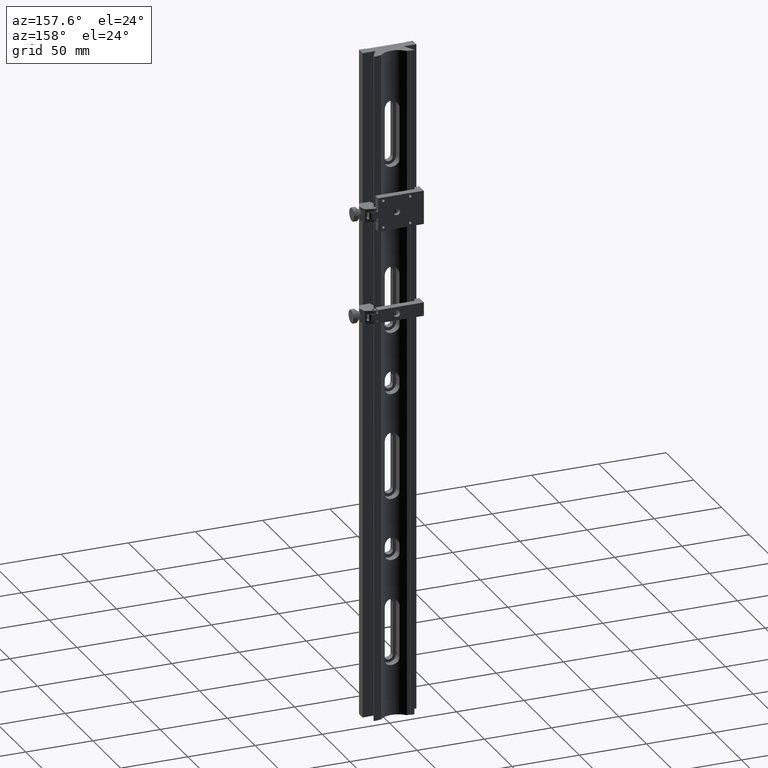
[diagram: clean part render]
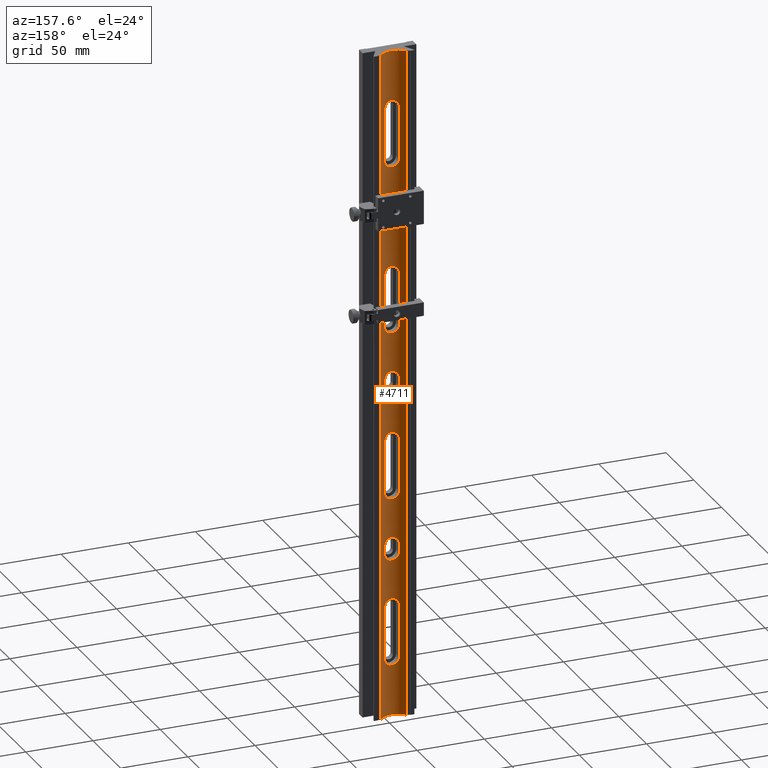
[diagram: same view with one face highlighted and labeled with its STEP entity id]
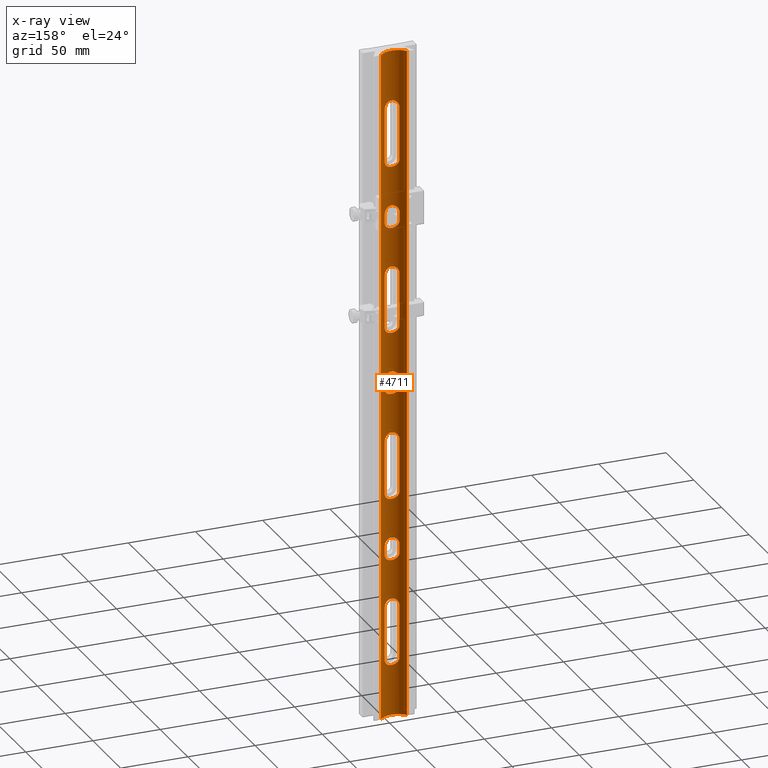
[diagram: x-ray of the same camera — body ghosted, the highlighted face saturated]
A machine part, auxiliary view. The second image highlights one B-rep face of the part: STEP entity #4711.
The next image is the same camera in x-ray: the body ghosted, the highlighted face saturated — about 0% of this face is hidden behind the body in this view.
In plain terms, the highlighted cylindrical surface (edge-blend (fillet) strip) has radius 12.5 mm, axis along (-0, 0, -1).
Its self-contained STEP definition (entity closure, byte-faithful):
#1 = CARTESIAN_POINT ( 'NONE',  ( 9.604686356149276349, 8.000000000000001776, 249.9999999999999716 ) ) ;
#4 = CARTESIAN_POINT ( 'NONE',  ( 1.266012518167694223, 3.562992296828745964, 212.3553907167799650 ) ) ;
#7 = VERTEX_POINT ( 'NONE', #4440 ) ;
#22 = CARTESIAN_POINT ( 'NONE',  ( -4.767077514528521576, 4.442719698820006613, -5.766365201874047663 ) ) ;
#29 = CARTESIAN_POINT ( 'NONE',  ( -0.7235754915566908752, 3.519625967096241315, -162.5447274495481906 ) ) ;
#37 = CARTESIAN_POINT ( 'NONE',  ( -5.463371493397493062, 4.756877311680621112, 121.2704488177621585 ) ) ;
#39 = CARTESIAN_POINT ( 'NONE',  ( 2.452909808896961863, 3.738324891094071400, -211.9360800659702591 ) ) ;
#48 = CARTESIAN_POINT ( 'NONE',  ( -3.638581638029493526, 4.038379994050417920, 211.1396277602765110 ) ) ;
#57 = CARTESIAN_POINT ( 'NONE',  ( -1.266012518167695555, 3.562992296828746408, 37.64460928321998523 ) ) ;
#78 = CARTESIAN_POINT ( 'NONE',  ( 0.7235754915566957601, 3.519625967096238650, 116.5447274495481338 ) ) ;
#82 = B_SPLINE_CURVE_WITH_KNOTS ( 'NONE', 3,
 ( #2060, #2661, #37, #3313, #164, #2620, #120, #3441, #1972, #731, #7375, #7943, #5281, #4081, #1372, #8024, #6615, #7899, #6049, #5369, #4040, #4682, #1411, #78, #7985, #2140, #4638, #4759, #4002, #5242, #4719, #7858, #2705, #6651, #3264, #2750, #2015, #6694, #7333, #7252, #772, #1489 ),
 .UNSPECIFIED., .F., .F.,
 ( 4, 2, 2, 2, 2, 2, 2, 2, 2, 2, 2, 2, 2, 2, 2, 2, 2, 2, 2, 2, 4 ),
 ( 0.000000000000000000, 0.001088223458269344055, 0.002176446916538688110, 0.003264670374808032165, 0.003808782103942686629, 0.004352893833077341526, 0.005441117291346621830, 0.006529340749615903869, 0.007073452478750544455, 0.007617564207885185908, 0.008705787666154461008, 0.009249899395289098991, 0.009794011124423736975, 0.01088223458269300253, 0.01197045804096227156, 0.01305868149923153712, 0.01414690495750080095, 0.01469101668663544934, 0.01523512841577009946, 0.01632335187403939625, 0.01741157533230869303 ),
 .UNSPECIFIED. ) ;
#85 = VERTEX_POINT ( 'NONE', #1 ) ;
#102 = CARTESIAN_POINT ( 'NONE',  ( -5.320886567516187604, 4.688748875783186776, 41.56165402701616784 ) ) ;
#113 = CARTESIAN_POINT ( 'NONE',  ( -0.1746818680405349544, 3.499893860054751560, -162.4997587726720667 ) ) ;
#120 = CARTESIAN_POINT ( 'NONE',  ( -4.767077514528523352, 4.442719698820007501, 119.2336347981259479 ) ) ;
#122 = CARTESIAN_POINT ( 'NONE',  ( -1.266012518167696888, 3.562992296828746408, -212.3553907167799935 ) ) ;
#128 = CARTESIAN_POINT ( 'NONE',  ( -4.664130054569973538, 4.402269544413255353, 5.920240057219704255 ) ) ;
#143 = CARTESIAN_POINT ( 'NONE',  ( -4.360951971730210097, 4.284773272989579773, -85.35615146673404752 ) ) ;
#147 = CARTESIAN_POINT ( 'NONE',  ( 5.463268972524248035, 4.756815190711165542, 42.26711487030347314 ) ) ;
#157 = CARTESIAN_POINT ( 'NONE',  ( -2.767522286145571275, 3.806394110068379355, -163.2336773536517001 ) ) ;
#158 = B_SPLINE_CURVE_WITH_KNOTS ( 'NONE', 3,
 ( #7772, #6477, #6644, #8487, #5363, #2007, #3432, #1442, #7890, #5396, #1405, #2655, #6687, #2698, #7852, #678, #4676, #6044, #4631, #2132, #4712, #113, #2052, #29, #6728, #8015, #3996, #6607, #157, #7937, #2613, #5956, #2781, #1965, #3346, #7325, #7245, #4073, #5318, #7368, #764, #7290 ),
 .UNSPECIFIED., .F., .F.,
 ( 4, 2, 2, 2, 2, 2, 2, 2, 2, 2, 2, 2, 2, 2, 2, 2, 2, 2, 2, 2, 4 ),
 ( 0.000000000000000000, 0.001088223458269240405, 0.002176446916538480811, 0.003264670374807721216, 0.003808782103942374379, 0.004352893833077027541, 0.005441117291346333866, 0.006529340749615641058, 0.007073452478750295522, 0.007617564207884949985, 0.008705787666154240698, 0.009249899395288885620, 0.009794011124423532277, 0.01088223458269283773, 0.01197045804096214666, 0.01305868149923145385, 0.01414690495750076278, 0.01469101668663541638, 0.01523512841577007344, 0.01632335187403938237, 0.01741157533230869303 ),
 .UNSPECIFIED. ) ;
#164 = CARTESIAN_POINT ( 'NONE',  ( -5.213099869976748124, 4.637932341751269227, 120.2103918892061927 ) ) ;
#169 = CARTESIAN_POINT ( 'NONE',  ( -5.211065515426134276, 4.637008669236494462, 4.795078069856331560 ) ) ;
#183 = CARTESIAN_POINT ( 'NONE',  ( -4.468409719719224071, 4.325465594975084649, 39.78826126659803464 ) ) ;
#201 = ORIENTED_EDGE ( 'NONE', *, *, #8227, .T. ) ;
#204 = ORIENTED_EDGE ( 'NONE', *, *, #8080, .F. ) ;
#206 = CARTESIAN_POINT ( 'NONE',  ( 4.360951971730207433, 4.284773272989578885, 6.356151466734034194 ) ) ;
#231 = CARTESIAN_POINT ( 'NONE',  ( 5.211065515426120065, 4.637008669236493574, 166.2049219301436835 ) ) ;
#239 = CARTESIAN_POINT ( 'NONE',  ( 5.211065515426124506, 4.637008669236491798, -129.7950780698563733 ) ) ;
#251 = CARTESIAN_POINT ( 'NONE',  ( 4.134927261176861712, 4.203101428351040170, 6.630982141538984465 ) ) ;
#263 = CARTESIAN_POINT ( 'NONE',  ( -1.266012518167694889, 3.562992296828745520, -87.35539071678002188 ) ) ;
#278 = CARTESIAN_POINT ( 'NONE',  ( 1.266012518167692003, 3.562992296828746408, 133.3553907167801356 ) ) ;
#281 = CARTESIAN_POINT ( 'NONE',  ( -4.767077514528505588, 4.442719698820000396, -130.7663652018741232 ) ) ;
#288 = VERTEX_POINT ( 'NONE', #7425 ) ;
#318 = CARTESIAN_POINT ( 'NONE',  ( 3.640810629803845622, 4.039074654214520166, 132.1375923405260835 ) ) ;
#322 = CARTESIAN_POINT ( 'NONE',  ( 4.134927261176864377, 4.203101428351039281, 85.63098214153896492 ) ) ;
#332 = CARTESIAN_POINT ( 'NONE',  ( -5.499999999999996447, 4.775027839678135599, -168.0000000000000000 ) ) ;
#343 = VECTOR ( 'NONE', #4619, 1000.000000000000000 ) ;
#358 = CARTESIAN_POINT ( 'NONE',  ( 0.1746818680405326785, 3.499893860054751116, 162.4997587726719814 ) ) ;
#366 = CARTESIAN_POINT ( 'NONE',  ( 1.436019803944287743, 3.577646812477408567, -133.3215574812812179 ) ) ;
#375 = LINE ( 'NONE', #8197, #3778 ) ;
#406 = CARTESIAN_POINT ( 'NONE',  ( -2.455686713790331321, 3.739010744038296252, 163.0656560019446317 ) ) ;
#419 = DIRECTION ( 'NONE',  ( -0.000000000000000000, 0.000000000000000000, -1.000000000000000000 ) ) ;
#428 = CARTESIAN_POINT ( 'NONE',  ( 9.604686356149276349, 8.000000000000001776, -250.0000000000000000 ) ) ;
#441 = DIRECTION ( 'NONE',  ( -0.000000000000000000, 0.000000000000000000, -1.000000000000000000 ) ) ;
#442 = CARTESIAN_POINT ( 'NONE',  ( 4.935953207741841098, 4.514820086043214609, 209.4526461986094432 ) ) ;
#519 = CARTESIAN_POINT ( 'NONE',  ( -5.213099869976747236, 4.637932341751267451, -208.7896081107937789 ) ) ;
#520 = VERTEX_POINT ( 'NONE', #4551 ) ;
#550 = CARTESIAN_POINT ( 'NONE',  ( 5.500000000000078160, 4.775027839678213759, 250.0000000000000000 ) ) ;
#561 = CARTESIAN_POINT ( 'NONE',  ( -1.791243918881808561, 3.627770058525935148, -212.2033078723133031 ) ) ;
#562 = ORIENTED_EDGE ( 'NONE', *, *, #1197, .T. ) ;
#583 = CARTESIAN_POINT ( 'NONE',  ( -0.7318247305610894315, 3.516321624483726538, -8.463187921521909018 ) ) ;
#588 = DIRECTION ( 'NONE',  ( -0.000000000000000000, 0.000000000000000000, -1.000000000000000000 ) ) ;
#599 = B_SPLINE_CURVE_WITH_KNOTS ( 'NONE', 3,
 ( #4419, #2807, #6716, #102, #4662, #3463, #7357, #183, #5944, #6633, #750, #2210, #710, #4828, #3334, #6757, #2119, #4780, #57, #2729, #4023, #7925, #7400, #2685, #5425, #3499, #6595, #5348, #5388, #8004, #6031, #8046, #5470, #2082, #8088, #1429, #5305, #2160, #2039, #147, #1472, #874 ),
 .UNSPECIFIED., .F., .F.,
 ( 4, 2, 2, 2, 2, 2, 2, 2, 2, 2, 2, 2, 2, 2, 2, 2, 2, 2, 2, 2, 4 ),
 ( 0.000000000000000000, 0.001088223458269263390, 0.002176446916538526781, 0.003264670374807789738, 0.003808782103942430757, 0.004352893833077071777, 0.005441117291346369428, 0.006529340749615664477, 0.007073452478750312869, 0.007617564207884961261, 0.008705787666154261514, 0.009249899395288911641, 0.009794011124423561768, 0.01088223458269286376, 0.01197045804096216227, 0.01305868149923146253, 0.01414690495750076452, 0.01469101668663541291, 0.01523512841577006130, 0.01632335187403937890, 0.01741157533230869650 ),
 .UNSPECIFIED. ) ;
#607 = CARTESIAN_POINT ( 'NONE',  ( -5.499999999999994671, 4.775027839678172015, -43.00000000000000711 ) ) ;
#646 = CARTESIAN_POINT ( 'NONE',  ( -5.499999999999995559, 4.775027839678172015, -42.63146406519725673 ) ) ;
#648 = CARTESIAN_POINT ( 'NONE',  ( -2.452909808896964527, 3.738324891094071845, -117.0639199340296841 ) ) ;
#651 = CARTESIAN_POINT ( 'NONE',  ( -5.463268972524252476, 4.756815190711164654, 207.7328851296965126 ) ) ;
#672 = CARTESIAN_POINT ( 'NONE',  ( -4.140132957479329967, 4.202588055097335129, 85.63800679282627470 ) ) ;
#678 = CARTESIAN_POINT ( 'NONE',  ( 1.960439013360199212, 3.653553443696077263, -162.8581408171019120 ) ) ;
#690 = CARTESIAN_POINT ( 'NONE',  ( 1.436019803944283080, 3.577646812477410787, -212.3215574812812179 ) ) ;
#692 = VERTEX_POINT ( 'NONE', #4077 ) ;
#695 = CARTESIAN_POINT ( 'NONE',  ( 2.455686713790329545, 3.739010744038293588, -38.06565600194458909 ) ) ;
#710 = CARTESIAN_POINT ( 'NONE',  ( -3.365233826132083994, 3.957591329563104221, 38.63491411110871354 ) ) ;
#717 = CARTESIAN_POINT ( 'NONE',  ( 0.7235754915566960932, 3.519625967096238650, -8.455272550451859104 ) ) ;
#722 = VERTEX_POINT ( 'NONE', #768 ) ;
#731 = CARTESIAN_POINT ( 'NONE',  ( -4.134927261176862601, 4.203101428351041058, 118.3690178584610209 ) ) ;
#740 = CARTESIAN_POINT ( 'NONE',  ( 5.499999999999994671, 4.775027839678172015, -81.99999999999998579 ) ) ;
#750 = CARTESIAN_POINT ( 'NONE',  ( -4.015897234029109697, 4.161930955679305377, 39.23783805368037036 ) ) ;
#764 = CARTESIAN_POINT ( 'NONE',  ( -5.499999999999997335, 4.775027839678173791, -167.6314640651972638 ) ) ;
#768 = CARTESIAN_POINT ( 'NONE',  ( -5.500000000000003553, 4.775027839678175567, -207.0000000000000000 ) ) ;
#772 = CARTESIAN_POINT ( 'NONE',  ( 5.499999999999999112, 4.775027839678174679, 121.6314640651972638 ) ) ;
#775 = CARTESIAN_POINT ( 'NONE',  ( 3.638581638029490417, 4.038379994050417920, -211.1396277602764542 ) ) ;
#780 = CARTESIAN_POINT ( 'NONE',  ( -3.638581638029507292, 4.038379994050423250, 7.139627760276445301 ) ) ;
#824 = DIRECTION ( 'NONE',  ( -0.000000000000000000, 0.000000000000000000, -1.000000000000000000 ) ) ;
#870 = VERTEX_POINT ( 'NONE', #2352 ) ;
#872 = CARTESIAN_POINT ( 'NONE',  ( -1.960439013360206095, 3.653553443696080816, -87.14185918289808797 ) ) ;
#874 = CARTESIAN_POINT ( 'NONE',  ( 5.499999999999995559, 4.775027839678172015, 43.00000000000000711 ) ) ;
#881 = CARTESIAN_POINT ( 'NONE',  ( -5.320886567516196486, 4.688748875783191217, 166.5616540270161750 ) ) ;
#888 = CARTESIAN_POINT ( 'NONE',  ( -0.3589657864649563046, 3.503822942303209675, 133.4913298622321634 ) ) ;
#899 = CARTESIAN_POINT ( 'NONE',  ( -5.499999999999998224, 4.775027839678173791, -122.0000000000000000 ) ) ;
#903 = CARTESIAN_POINT ( 'NONE',  ( 5.499999999999998224, 4.775027839678175567, -128.0000000000000000 ) ) ;
#905 = VERTEX_POINT ( 'NONE', #7452 ) ;
#911 = CARTESIAN_POINT ( 'NONE',  ( -5.500000000000002665, 4.775027839678177344, -82.36839926321867722 ) ) ;
#921 = CARTESIAN_POINT ( 'NONE',  ( 4.927301002126857732, 4.511737245493965709, 165.5497452019735363 ) ) ;
#926 = CARTESIAN_POINT ( 'NONE',  ( -9.604686356149272797, 7.999999999999998224, 249.9999999999999716 ) ) ;
#927 = CARTESIAN_POINT ( 'NONE',  ( 4.134927261176865265, 4.203101428351043722, 131.6309821415389649 ) ) ;
#967 = CARTESIAN_POINT ( 'NONE',  ( -3.640810629803848286, 4.039074654214519278, 163.8624076594739449 ) ) ;
#976 = CARTESIAN_POINT ( 'NONE',  ( 0.7235754915566933176, 3.519625967096238650, -133.4552725504518662 ) ) ;
#977 = CYLINDRICAL_SURFACE ( 'NONE', #1216, 12.50000000000000000 ) ;
#985 = EDGE_CURVE ( 'NONE', #5911, #6978, #7154, .T. ) ;
#999 = CARTESIAN_POINT ( 'NONE',  ( 4.365141366191278571, 4.284993196813135619, -85.36499412839006595 ) ) ;
#1011 = CARTESIAN_POINT ( 'NONE',  ( 1.791243918881805675, 3.627770058525935148, 133.2033078723133599 ) ) ;
#1039 = VERTEX_POINT ( 'NONE', #3427 ) ;
#1059 = CARTESIAN_POINT ( 'NONE',  ( -5.320886567516192045, 4.688748875783187664, -129.4383459729837966 ) ) ;
#1060 = CARTESIAN_POINT ( 'NONE',  ( 5.213099869976748124, 4.637932341751268339, 83.78960811079379312 ) ) ;
#1062 = ORIENTED_EDGE ( 'NONE', *, *, #6009, .F. ) ;
#1099 = ORIENTED_EDGE ( 'NONE', *, *, #2466, .T. ) ;
#1105 = CARTESIAN_POINT ( 'NONE',  ( -5.499999999999998224, 4.775027839678173791, 128.0000000000000000 ) ) ;
#1107 = CARTESIAN_POINT ( 'NONE',  ( 4.927301002126864837, 4.511737245493968373, -130.4502547980264353 ) ) ;
#1111 = B_SPLINE_CURVE_WITH_KNOTS ( 'NONE', 3,
 ( #6236, #5597, #8212, #4955, #1684, #442, #3067, #5682, #8298, #2420, #5041, #7659, #1773, #4401, #7015, #1131, #1339, #7175, #4, #1857, #7219, #3233, #5893, #5167, #7097, #3922, #6624, #7263, #3275, #4523, #48, #4566, #1213, #2544, #6541, #5294, #6495, #4011, #6581, #651, #7788, #1897 ),
 .UNSPECIFIED., .F., .F.,
 ( 4, 2, 2, 2, 2, 2, 2, 2, 2, 2, 2, 2, 2, 2, 2, 2, 2, 2, 2, 2, 4 ),
 ( 0.000000000000000000, 0.001088223458269240405, 0.002176446916538480811, 0.003264670374807721216, 0.003808782103942374379, 0.004352893833077027541, 0.005441117291346333866, 0.006529340749615641058, 0.007073452478750295522, 0.007617564207884949985, 0.008705787666154240698, 0.009249899395288885620, 0.009794011124423532277, 0.01088223458269283773, 0.01197045804096214666, 0.01305868149923145385, 0.01414690495750076278, 0.01469101668663541638, 0.01523512841577007344, 0.01632335187403938237, 0.01741157533230869303 ),
 .UNSPECIFIED. ) ;
#1120 = DIRECTION ( 'NONE',  ( -0.000000000000000000, 0.000000000000000000, -1.000000000000000000 ) ) ;
#1130 = CARTESIAN_POINT ( 'NONE',  ( 5.004172744658501593, 4.545134261420408883, -84.28913355057159151 ) ) ;
#1131 = CARTESIAN_POINT ( 'NONE',  ( 1.960439013360199212, 3.653553443696077263, 212.1418591828980880 ) ) ;
#1159 = ORIENTED_EDGE ( 'NONE', *, *, #2188, .T. ) ;
#1182 = EDGE_CURVE ( 'NONE', #4760, #6446, #2841, .T. ) ;
#1188 = CARTESIAN_POINT ( 'NONE',  ( -5.463268972524248923, 4.756815190711164654, 82.73288512969652686 ) ) ;
#1197 = EDGE_CURVE ( 'NONE', #4960, #7835, #4875, .T. ) ;
#1206 = CARTESIAN_POINT ( 'NONE',  ( -2.769513885777391771, 3.806797052175194818, -211.7653506018370422 ) ) ;
#1209 = CARTESIAN_POINT ( 'NONE',  ( -4.140132957479329079, 4.202588055097333353, -39.36199320717371108 ) ) ;
#1213 = CARTESIAN_POINT ( 'NONE',  ( -4.365141366191264360, 4.284993196813129401, 210.3649941283900944 ) ) ;
#1216 = AXIS2_PLACEMENT_3D ( 'NONE', #5571, #419, #3640 ) ;
#1227 = AXIS2_PLACEMENT_3D ( 'NONE', #6433, #588, #2570 ) ;
#1228 = CARTESIAN_POINT ( 'NONE',  ( -4.015897234029106144, 4.161930955679301825, -6.762161946319627859 ) ) ;
#1252 = CARTESIAN_POINT ( 'NONE',  ( -0.9034421561682091095, 3.531417676067726497, -116.5716877395977491 ) ) ;
#1254 = CARTESIAN_POINT ( 'NONE',  ( 5.500000000000002665, 4.775027839678175567, 81.99999999999998579 ) ) ;
#1255 = ORIENTED_EDGE ( 'NONE', *, *, #4045, .T. ) ;
#1268 = CARTESIAN_POINT ( 'NONE',  ( 4.664130054569972650, 4.402269544413258018, -5.920240057219702479 ) ) ;
#1274 = EDGE_CURVE ( 'NONE', #4313, #4760, #7909, .T. ) ;
#1275 = VERTEX_POINT ( 'NONE', #740 ) ;
#1309 = ORIENTED_EDGE ( 'NONE', *, *, #5749, .F. ) ;
#1312 = CARTESIAN_POINT ( 'NONE',  ( 2.452909808896963639, 3.738324891094070068, -7.936080065970312347 ) ) ;
#1329 = CARTESIAN_POINT ( 'NONE',  ( 5.317647263843144678, 4.687213424654788518, -208.4515702038889060 ) ) ;
#1335 = CARTESIAN_POINT ( 'NONE',  ( 5.500000000000000000, 4.775027839678175567, -122.0000000000000000 ) ) ;
#1339 = CARTESIAN_POINT ( 'NONE',  ( 1.791243918881806341, 3.627770058525936037, 212.2033078723133031 ) ) ;
#1343 = ORIENTED_EDGE ( 'NONE', *, *, #5783, .T. ) ;
#1356 = CARTESIAN_POINT ( 'NONE',  ( -5.213099869976744571, 4.637932341751267451, -4.789608110793816209 ) ) ;
#1372 = CARTESIAN_POINT ( 'NONE',  ( -2.455686713790328657, 3.739010744038294032, 117.0656560019445891 ) ) ;
#1374 = CARTESIAN_POINT ( 'NONE',  ( -0.7318247305610942055, 3.516321624483725650, -212.4631879215219215 ) ) ;
#1379 = CARTESIAN_POINT ( 'NONE',  ( -0.1746818680405374524, 3.499893860054749783, 133.5002412273279617 ) ) ;
#1381 = CARTESIAN_POINT ( 'NONE',  ( -4.140132957479334408, 4.202588055097335129, 6.638006792826297797 ) ) ;
#1395 = ORIENTED_EDGE ( 'NONE', *, *, #1182, .T. ) ;
#1397 = CARTESIAN_POINT ( 'NONE',  ( 0.9034421561682073332, 3.531417676067723388, -8.428312260402234912 ) ) ;
#1405 = CARTESIAN_POINT ( 'NONE',  ( 4.015897234029107921, 4.161930955679304489, -164.2378380536803490 ) ) ;
#1411 = CARTESIAN_POINT ( 'NONE',  ( 0.3589657864649583030, 3.503822942303210120, 116.5086701377678509 ) ) ;
#1416 = CARTESIAN_POINT ( 'NONE',  ( -0.9034421561682075552, 3.531417676067723832, 8.428312260402234912 ) ) ;
#1417 = CARTESIAN_POINT ( 'NONE',  ( -5.500000000000000000, 4.775027839678175567, -2.999999999999999112 ) ) ;
#1429 = CARTESIAN_POINT ( 'NONE',  ( 4.927301002126863949, 4.511737245493965709, 40.54974520197359311 ) ) ;
#1430 = VERTEX_POINT ( 'NONE', #1417 ) ;
#1442 = CARTESIAN_POINT ( 'NONE',  ( 4.468409719719224071, 4.325465594975085537, -164.7882612665979707 ) ) ;
#1457 = CARTESIAN_POINT ( 'NONE',  ( 1.960439013360198768, 3.653553443696078151, 8.141859182898071978 ) ) ;
#1470 = CARTESIAN_POINT ( 'NONE',  ( 0.7235754915566932066, 3.519625967096238206, -87.45527255045185200 ) ) ;
#1472 = CARTESIAN_POINT ( 'NONE',  ( 5.499999999999995559, 4.775027839678172015, 42.63146406519725673 ) ) ;
#1475 = CARTESIAN_POINT ( 'NONE',  ( 5.317647263843144678, 4.687213424654785854, -4.451570203888885580 ) ) ;
#1486 = VECTOR ( 'NONE', #4159, 1000.000000000000000 ) ;
#1489 = CARTESIAN_POINT ( 'NONE',  ( 5.499999999999998224, 4.775027839678175567, 122.0000000000000000 ) ) ;
#1496 = CARTESIAN_POINT ( 'NONE',  ( 1.444167463114245598, 3.582471709711285257, 8.310117506184882430 ) ) ;
#1512 = CARTESIAN_POINT ( 'NONE',  ( -2.769513885777398876, 3.806797052175194818, -86.76535060183695691 ) ) ;
#1516 = EDGE_LOOP ( 'NONE', ( #6819, #201, #5908, #5606 ) ) ;
#1537 = CARTESIAN_POINT ( 'NONE',  ( 0.3716744979042022057, 3.500218916825644566, 8.499502461394968122 ) ) ;
#1559 = CARTESIAN_POINT ( 'NONE',  ( 4.664130054569960215, 4.402269544413249136, 165.0797599427802709 ) ) ;
#1593 = CARTESIAN_POINT ( 'NONE',  ( -0.3716744979042038155, 3.500218916825643234, -87.49950246139496812 ) ) ;
#1603 = CARTESIAN_POINT ( 'NONE',  ( -4.468409719719205420, 4.325465594975081984, 164.7882612665980275 ) ) ;
#1610 = CARTESIAN_POINT ( 'NONE',  ( 4.935953207741843762, 4.514820086043217273, 130.4526461986095001 ) ) ;
#1613 = CARTESIAN_POINT ( 'NONE',  ( 4.468409719719223183, 4.325465594975089090, 85.21173873340195826 ) ) ;
#1619 = VERTEX_POINT ( 'NONE', #428 ) ;
#1651 = CARTESIAN_POINT ( 'NONE',  ( 4.365141366191261696, 4.284993196813127625, 164.6350058716099056 ) ) ;
#1656 = CARTESIAN_POINT ( 'NONE',  ( 5.463371493397498391, 4.756877311680623777, 128.7295511822378558 ) ) ;
#1659 = CARTESIAN_POINT ( 'NONE',  ( -1.444167463114251149, 3.582471709711287922, -133.3101175061848949 ) ) ;
#1672 = DIRECTION ( 'NONE',  ( -0.000000000000000000, 0.000000000000000000, -1.000000000000000000 ) ) ;
#1684 = CARTESIAN_POINT ( 'NONE',  ( 5.213099869976742795, 4.637932341751267451, 208.7896081107938073 ) ) ;
#1690 = CARTESIAN_POINT ( 'NONE',  ( 1.436019803944283080, 3.577646812477410787, 162.6784425187188106 ) ) ;
#1699 = CARTESIAN_POINT ( 'NONE',  ( 4.365141366191267913, 4.284993196813128513, -131.3649941283900944 ) ) ;
#1700 = CARTESIAN_POINT ( 'NONE',  ( -0.1746818680405319291, 3.499893860054751560, 87.50024122732797593 ) ) ;
#1702 = ORIENTED_EDGE ( 'NONE', *, *, #3510, .F. ) ;
#1727 = CARTESIAN_POINT ( 'NONE',  ( 2.452909808896961419, 3.738324891094070512, -86.93608006597033011 ) ) ;
#1747 = CARTESIAN_POINT ( 'NONE',  ( 1.783197991779772007, 3.623181025438777514, -133.2155400363112108 ) ) ;
#1748 = CARTESIAN_POINT ( 'NONE',  ( 1.791243918881800790, 3.627770058525936481, 87.20330787231333147 ) ) ;
#1761 = CARTESIAN_POINT ( 'NONE',  ( -5.499999999999996447, 4.775027839678168462, 207.0000000000000000 ) ) ;
#1773 = CARTESIAN_POINT ( 'NONE',  ( 3.365233826132078665, 3.957591329563104221, 211.3650858888913433 ) ) ;
#1783 = DIRECTION ( 'NONE',  ( -0.000000000000000000, 0.000000000000000000, -1.000000000000000000 ) ) ;
#1793 = DIRECTION ( 'NONE',  ( -0.000000000000000000, 0.000000000000000000, -1.000000000000000000 ) ) ;
#1848 = CARTESIAN_POINT ( 'NONE',  ( -4.015897234029113250, 4.161930955679304489, -210.7621619463196510 ) ) ;
#1851 = CARTESIAN_POINT ( 'NONE',  ( -2.452909808896959643, 3.738324891094069180, -38.06391993402970542 ) ) ;
#1855 = CARTESIAN_POINT ( 'NONE',  ( -4.140132957479335296, 4.202588055097332465, -118.3619932071736827 ) ) ;
#1857 = CARTESIAN_POINT ( 'NONE',  ( 0.7318247305610928732, 3.516321624483725650, 212.4631879215219215 ) ) ;
#1866 = CARTESIAN_POINT ( 'NONE',  ( -9.604686356149272797, 7.999999999999998224, 250.0000000000000000 ) ) ;
#1894 = CARTESIAN_POINT ( 'NONE',  ( 5.500000000000002665, 4.775027839678203101, -43.00000000000000711 ) ) ;
#1896 = CARTESIAN_POINT ( 'NONE',  ( -2.767522286145578381, 3.806394110068378911, -117.2336773536517143 ) ) ;
#1897 = CARTESIAN_POINT ( 'NONE',  ( -5.499999999999996447, 4.775027839678168462, 207.0000000000000000 ) ) ;
#1915 = CARTESIAN_POINT ( 'NONE',  ( 4.140132957479336184, 4.202588055097336905, -6.638006792826296909 ) ) ;
#1920 = CARTESIAN_POINT ( 'NONE',  ( -5.004172744658499816, 4.545134261420410660, 84.28913355057161993 ) ) ;
#1942 = CARTESIAN_POINT ( 'NONE',  ( -5.211065515426128947, 4.637008669236494462, -41.20492193014369064 ) ) ;
#1944 = CARTESIAN_POINT ( 'NONE',  ( -0.7235754915566965373, 3.519625967096240426, -116.5447274495481764 ) ) ;
#1965 = CARTESIAN_POINT ( 'NONE',  ( -4.664130054569964656, 4.402269544413250912, -165.0797599427802993 ) ) ;
#1972 = CARTESIAN_POINT ( 'NONE',  ( -4.360951971730208321, 4.284773272989579773, 118.6438485332659241 ) ) ;
#1980 = CARTESIAN_POINT ( 'NONE',  ( 4.935953207741846427, 4.514820086043217273, -119.5473538013904715 ) ) ;
#2007 = CARTESIAN_POINT ( 'NONE',  ( 4.935953207741841098, 4.514820086043214609, -165.5473538013905284 ) ) ;
#2015 = CARTESIAN_POINT ( 'NONE',  ( 5.004172744658505145, 4.545134261420410660, 119.7108664494283516 ) ) ;
#2023 = CARTESIAN_POINT ( 'NONE',  ( 0.3716744979042008734, 3.500218916825644122, 133.4995024613949681 ) ) ;
#2025 = CARTESIAN_POINT ( 'NONE',  ( 1.791243918881798791, 3.627770058525933816, -116.7966921276866969 ) ) ;
#2037 = CARTESIAN_POINT ( 'NONE',  ( -5.499999999999998224, 4.775027839678173791, 3.000000000000000888 ) ) ;
#2039 = CARTESIAN_POINT ( 'NONE',  ( 5.317647263843141126, 4.687213424654785854, 41.54842979611112952 ) ) ;
#2046 = CARTESIAN_POINT ( 'NONE',  ( -0.3716744979042026498, 3.500218916825645454, -8.499502461394968122 ) ) ;
#2052 = CARTESIAN_POINT ( 'NONE',  ( -0.3589657864649525854, 3.503822942303211896, -162.5086701377678935 ) ) ;
#2060 = CARTESIAN_POINT ( 'NONE',  ( -5.500000000000000000, 4.775027839678175567, 122.0000000000000000 ) ) ;
#2067 = CARTESIAN_POINT ( 'NONE',  ( 3.365233826132080441, 3.957591329563105109, 7.365085888891296229 ) ) ;
#2082 = CARTESIAN_POINT ( 'NONE',  ( 4.664130054569969985, 4.402269544413252689, 40.07975994278031351 ) ) ;
#2098 = B_SPLINE_CURVE_WITH_KNOTS ( 'NONE', 3,
 ( #5311, #4579, #5993, #2647, #1356, #5912, #22, #4706, #7283, #4624, #1228, #3986, #8479, #2692, #6600, #3895, #7931, #2605, #6471, #583, #2046, #3209, #4542, #717, #1397, #4669, #5823, #1312, #8437, #5227, #5182, #1915, #7152, #1268, #7320, #2815, #8177, #2776, #1475, #6155, #8008, #7445 ),
 .UNSPECIFIED., .F., .F.,
 ( 4, 2, 2, 2, 2, 2, 2, 2, 2, 2, 2, 2, 2, 2, 2, 2, 2, 2, 2, 2, 4 ),
 ( 8.673617379884034509E-19, 0.001088223458269295266, 0.002176446916538590966, 0.003264670374807886449, 0.003808782103942533540, 0.004352893833077181064, 0.005441117291346473511, 0.006529340749615765091, 0.007073452478750411748, 0.007617564207885058405, 0.008705787666154349985, 0.009249899395288996642, 0.009794011124423643300, 0.01088223458269293661, 0.01197045804096222993, 0.01305868149923152151, 0.01414690495750081656, 0.01469101668663546321, 0.01523512841577010987, 0.01632335187403940666, 0.01741157533230869997 ),
 .UNSPECIFIED. ) ;
#2102 = CARTESIAN_POINT ( 'NONE',  ( 0.3589657864649514751, 3.503822942303210564, -212.4913298622321634 ) ) ;
#2119 = CARTESIAN_POINT ( 'NONE',  ( -1.791243918881804120, 3.627770058525934704, 37.79669212768666853 ) ) ;
#2132 = CARTESIAN_POINT ( 'NONE',  ( 0.7318247305610928732, 3.516321624483725650, -162.5368120784780217 ) ) ;
#2140 = CARTESIAN_POINT ( 'NONE',  ( 1.436019803944293738, 3.577646812477410343, 116.6784425187187537 ) ) ;
#2141 = AXIS2_PLACEMENT_3D ( 'NONE', #7361, #2860, #6723 ) ;
#2142 = ORIENTED_EDGE ( 'NONE', *, *, #4753, .F. ) ;
#2143 = CARTESIAN_POINT ( 'NONE',  ( 5.499999999999992006, 4.775027839678170238, -207.3685359348027077 ) ) ;
#2147 = CARTESIAN_POINT ( 'NONE',  ( 5.320886567516186716, 4.688748875783184999, 4.438345972983841037 ) ) ;
#2160 = CARTESIAN_POINT ( 'NONE',  ( 5.211065515426129835, 4.637008669236492686, 41.20492193014369064 ) ) ;
#2165 = VECTOR ( 'NONE', #7195, 1000.000000000000000 ) ;
#2188 = EDGE_CURVE ( 'NONE', #870, #4054, #6293, .T. ) ;
#2191 = CARTESIAN_POINT ( 'NONE',  ( 2.455686713790326881, 3.739010744038294920, 7.934343998055412683 ) ) ;
#2210 = CARTESIAN_POINT ( 'NONE',  ( -3.640810629803844733, 4.039074654214521054, 38.86240765947394493 ) ) ;
#2215 = CARTESIAN_POINT ( 'NONE',  ( 3.359488323669833409, 3.956037097100739697, 163.6306923458595008 ) ) ;
#2221 = CARTESIAN_POINT ( 'NONE',  ( 5.500000000000002665, 4.775027839678177344, 128.3683992632186914 ) ) ;
#2234 = CARTESIAN_POINT ( 'NONE',  ( -1.783197991779766900, 3.623181025438775738, 8.215540036311200112 ) ) ;
#2247 = CARTESIAN_POINT ( 'NONE',  ( -5.463371493397496614, 4.756877311680623777, -82.72955118223782733 ) ) ;
#2264 = CARTESIAN_POINT ( 'NONE',  ( -1.960439013360200988, 3.653553443696079039, -133.1418591828980880 ) ) ;
#2265 = CARTESIAN_POINT ( 'NONE',  ( 5.320886567516186716, 4.688748875783187664, 83.43834597298383926 ) ) ;
#2298 = EDGE_CURVE ( 'NONE', #692, #7472, #4758, .T. ) ;
#2301 = CARTESIAN_POINT ( 'NONE',  ( 0.7235754915566889878, 3.519625967096239094, 162.5447274495481906 ) ) ;
#2310 = CARTESIAN_POINT ( 'NONE',  ( -0.7318247305610896536, 3.516321624483725206, -133.4631879215219215 ) ) ;
#2311 = CARTESIAN_POINT ( 'NONE',  ( 2.769513885777397100, 3.806797052175197038, 86.76535060183691428 ) ) ;
#2330 = CIRCLE ( 'NONE', #1227, 12.50000000000000000 ) ;
#2336 = CARTESIAN_POINT ( 'NONE',  ( 5.463268972524248923, 4.756815190711164654, -82.73288512969652686 ) ) ;
#2346 = CARTESIAN_POINT ( 'NONE',  ( -5.463371493397501055, 4.756877311680624665, 167.2704488177622011 ) ) ;
#2352 = CARTESIAN_POINT ( 'NONE',  ( 5.500000000000002665, 4.775027839678203101, -43.00000000000000711 ) ) ;
#2353 = CARTESIAN_POINT ( 'NONE',  ( 5.463268972524256029, 4.756815190711169095, -128.7328851296965695 ) ) ;
#2354 = CARTESIAN_POINT ( 'NONE',  ( 0.3716744979042049812, 3.500218916825643678, 87.49950246139493970 ) ) ;
#2376 = CARTESIAN_POINT ( 'NONE',  ( 0.9034421561682064450, 3.531417676067726941, -87.42831226040222248 ) ) ;
#2382 = ORIENTED_EDGE ( 'NONE', *, *, #4245, .T. ) ;
#2384 = CARTESIAN_POINT ( 'NONE',  ( -1.960439013360203209, 3.653553443696078595, 162.8581408171019405 ) ) ;
#2390 = CARTESIAN_POINT ( 'NONE',  ( -3.359488323669839183, 3.956037097100737920, 132.3693076541404707 ) ) ;
#2392 = CARTESIAN_POINT ( 'NONE',  ( -1.266012518167692891, 3.562992296828745964, -133.3553907167800787 ) ) ;
#2393 = FACE_BOUND ( 'NONE', #7704, .T. ) ;
#2405 = CARTESIAN_POINT ( 'NONE',  ( 5.500000000000000000, 4.775027839678175567, 3.000000000000000000 ) ) ;
#2420 = CARTESIAN_POINT ( 'NONE',  ( 4.134927261176865265, 4.203101428351042834, 210.6309821415389081 ) ) ;
#2439 = FACE_BOUND ( 'NONE', #7242, .T. ) ;
#2462 = CARTESIAN_POINT ( 'NONE',  ( 5.499999999999994671, 4.775027839678172015, -81.99999999999998579 ) ) ;
#2466 = EDGE_CURVE ( 'NONE', #1430, #8340, #2098, .T. ) ;
#2481 = CARTESIAN_POINT ( 'NONE',  ( -1.436019803944289075, 3.577646812477409011, 133.3215574812812463 ) ) ;
#2483 = CARTESIAN_POINT ( 'NONE',  ( 5.500000000000069278, 4.775027839678210206, 250.0000000000000000 ) ) ;
#2484 = CARTESIAN_POINT ( 'NONE',  ( 5.499999999999992895, 4.775027839678172015, -207.0000000000000000 ) ) ;
#2496 = CARTESIAN_POINT ( 'NONE',  ( 5.499999999999992895, 4.775027839678172015, 168.0000000000000000 ) ) ;
#2498 = CARTESIAN_POINT ( 'NONE',  ( -5.500000000000003553, 4.775027839678175567, -207.0000000000000000 ) ) ;
#2502 = CARTESIAN_POINT ( 'NONE',  ( 1.791243918881803454, 3.627770058525936925, -37.79669212768668274 ) ) ;
#2505 = CARTESIAN_POINT ( 'NONE',  ( 1.960439013360203653, 3.653553443696081704, -116.8581408171019689 ) ) ;
#2534 = CARTESIAN_POINT ( 'NONE',  ( -1.444167463114254257, 3.582471709711288366, -212.3101175061848664 ) ) ;
#2539 = CARTESIAN_POINT ( 'NONE',  ( 4.767077514528521576, 4.442719698820005725, -40.23363479812594790 ) ) ;
#2542 = CARTESIAN_POINT ( 'NONE',  ( 4.468409719719224960, 4.325465594975087313, -118.7882612665980560 ) ) ;
#2544 = CARTESIAN_POINT ( 'NONE',  ( -4.664130054569964656, 4.402269544413250912, 209.9202400572197007 ) ) ;
#2554 = EDGE_LOOP ( 'NONE', ( #3062, #1255, #7606, #1395 ) ) ;
#2569 = EDGE_CURVE ( 'NONE', #1619, #288, #6670, .T. ) ;
#2570 = DIRECTION ( 'NONE',  ( 0.000000000000000000, -1.000000000000000000, 0.000000000000000000 ) ) ;
#2582 = CARTESIAN_POINT ( 'NONE',  ( -5.004172744658501593, 4.545134261420411548, -40.71086644942840138 ) ) ;
#2584 = CARTESIAN_POINT ( 'NONE',  ( -1.436019803944293294, 3.577646812477411675, -116.6784425187187821 ) ) ;
#2605 = CARTESIAN_POINT ( 'NONE',  ( -1.444167463114246930, 3.582471709711284369, -8.310117506184880654 ) ) ;
#2613 = CARTESIAN_POINT ( 'NONE',  ( -3.638581638029493526, 4.038379994050417920, -163.8603722397236027 ) ) ;
#2620 = CARTESIAN_POINT ( 'NONE',  ( -4.935953207741848203, 4.514820086043218161, 119.5473538013905141 ) ) ;
#2625 = CARTESIAN_POINT ( 'NONE',  ( 4.935953207741841098, 4.514820086043213720, -40.54735380139050704 ) ) ;
#2642 = EDGE_CURVE ( 'NONE', #7, #6446, #7668, .T. ) ;
#2647 = CARTESIAN_POINT ( 'NONE',  ( -5.320886567516185828, 4.688748875783186776, -4.438345972983841037 ) ) ;
#2655 = CARTESIAN_POINT ( 'NONE',  ( 3.640810629803845178, 4.039074654214520166, -163.8624076594739734 ) ) ;
#2661 = CARTESIAN_POINT ( 'NONE',  ( -5.499999999999998224, 4.775027839678174679, 121.6316007367813086 ) ) ;
#2668 = CARTESIAN_POINT ( 'NONE',  ( 0.7318247305610890985, 3.516321624483724761, 133.4631879215218930 ) ) ;
#2685 = CARTESIAN_POINT ( 'NONE',  ( 0.7235754915566933176, 3.519625967096238206, 37.54472744954816221 ) ) ;
#2692 = CARTESIAN_POINT ( 'NONE',  ( -2.769513885777389550, 3.806797052175194374, -7.765350601836940037 ) ) ;
#2698 = CARTESIAN_POINT ( 'NONE',  ( 2.769513885777388662, 3.806797052175195706, -163.2346493981631568 ) ) ;
#2705 = CARTESIAN_POINT ( 'NONE',  ( 4.365141366191281236, 4.284993196813135619, 118.6350058716099625 ) ) ;
#2708 = CARTESIAN_POINT ( 'NONE',  ( 4.757545737347816051, 4.440405074606871949, -209.7654660182065243 ) ) ;
#2726 = EDGE_CURVE ( 'NONE', #870, #1275, #5604, .T. ) ;
#2729 = CARTESIAN_POINT ( 'NONE',  ( -0.7318247305610929843, 3.516321624483725206, 37.53681207847809986 ) ) ;
#2734 = B_SPLINE_CURVE_WITH_KNOTS ( 'NONE', 3,
 ( #2498, #5159, #6403, #6447, #519, #8412, #7821, #8377, #5118, #7738, #1848, #4475, #7090, #1206, #3829, #3186, #561, #2534, #122, #1374, #5404, #2789, #2102, #4721, #7211, #690, #4004, #39, #6085, #7336, #775, #7254, #5450, #6736, #2708, #5327, #4761, #6654, #1329, #4684, #2143, #7377 ),
 .UNSPECIFIED., .F., .F.,
 ( 4, 2, 2, 2, 2, 2, 2, 2, 2, 2, 2, 2, 2, 2, 2, 2, 2, 2, 2, 2, 4 ),
 ( 0.000000000000000000, 0.001088223458269305891, 0.002176446916538611782, 0.003264670374807917240, 0.003808782103942537009, 0.004352893833077156778, 0.005441117291346453562, 0.006529340749615748611, 0.007073452478750397003, 0.007617564207885045395, 0.008705787666154325699, 0.009249899395288965417, 0.009794011124423606870, 0.01088223458269290712, 0.01197045804096220391, 0.01305868149923150069, 0.01414690495750080095, 0.01469101668663544934, 0.01523512841577009773, 0.01632335187403939972, 0.01741157533230869650 ),
 .UNSPECIFIED. ) ;
#2745 = CARTESIAN_POINT ( 'NONE',  ( 5.500000000000046185, 4.775027839678199548, 250.0000000000000000 ) ) ;
#2750 = CARTESIAN_POINT ( 'NONE',  ( 4.927301002126857732, 4.511737245493964821, 119.5497452019735505 ) ) ;
#2758 = CARTESIAN_POINT ( 'NONE',  ( -4.757545737347821380, 4.440405074606874614, 5.765466018206602428 ) ) ;
#2776 = CARTESIAN_POINT ( 'NONE',  ( 5.211065515426129835, 4.637008669236497127, -4.795078069856328007 ) ) ;
#2781 = CARTESIAN_POINT ( 'NONE',  ( -4.365141366191264360, 4.284993196813129401, -164.6350058716098772 ) ) ;
#2789 = CARTESIAN_POINT ( 'NONE',  ( 0.1746818680405326785, 3.499893860054751116, -212.5002412273279617 ) ) ;
#2792 = CARTESIAN_POINT ( 'NONE',  ( -5.317647263843142014, 4.687213424654784966, 4.451570203888888244 ) ) ;
#2805 = CARTESIAN_POINT ( 'NONE',  ( -5.500000000000001776, 4.775027839678175567, -81.99999999999998579 ) ) ;
#2807 = CARTESIAN_POINT ( 'NONE',  ( -5.500000000000004441, 4.775027839678175567, 42.63160073678132989 ) ) ;
#2815 = CARTESIAN_POINT ( 'NONE',  ( 4.927301002126865725, 4.511737245493970150, -5.450254798026420211 ) ) ;
#2841 = B_SPLINE_CURVE_WITH_KNOTS ( 'NONE', 3,
 ( #6156, #6931, #2346, #881, #8221, #6288, #6202, #1603, #5605, #2900, #4963, #967, #5650, #4918, #406, #2384, #3676, #5003, #3034, #7532, #4279, #358, #7620, #2301, #8097, #1690, #5476, #6113, #7574, #2215, #4153, #6764, #1651, #1559, #4316, #921, #4835, #231, #4235, #2862, #8178, #7447 ),
 .UNSPECIFIED., .F., .F.,
 ( 4, 2, 2, 2, 2, 2, 2, 2, 2, 2, 2, 2, 2, 2, 2, 2, 2, 2, 2, 2, 4 ),
 ( 0.000000000000000000, 0.001088223458269305891, 0.002176446916538611782, 0.003264670374807917240, 0.003808782103942537009, 0.004352893833077156778, 0.005441117291346453562, 0.006529340749615748611, 0.007073452478750397003, 0.007617564207885045395, 0.008705787666154325699, 0.009249899395288965417, 0.009794011124423606870, 0.01088223458269290712, 0.01197045804096220391, 0.01305868149923150069, 0.01414690495750080095, 0.01469101668663544934, 0.01523512841577009773, 0.01632335187403939972, 0.01741157533230869650 ),
 .UNSPECIFIED. ) ;
#2853 = CARTESIAN_POINT ( 'NONE',  ( -2.455686713790332654, 3.739010744038297140, -86.93434399805539670 ) ) ;
#2860 = DIRECTION ( 'NONE',  ( -0.000000000000000000, 0.000000000000000000, -1.000000000000000000 ) ) ;
#2862 = CARTESIAN_POINT ( 'NONE',  ( 5.463268972524248923, 4.756815190711164654, 167.2671148703034874 ) ) ;
#2870 = CARTESIAN_POINT ( 'NONE',  ( -5.463371493397497503, 4.756877311680624665, -128.7295511822378273 ) ) ;
#2900 = CARTESIAN_POINT ( 'NONE',  ( -4.134927261176867930, 4.203101428351041946, 164.3690178584610635 ) ) ;
#2906 = CARTESIAN_POINT ( 'NONE',  ( 4.767077514528505588, 4.442719698820002172, 130.7663652018741232 ) ) ;
#2939 = B_SPLINE_CURVE_WITH_KNOTS ( 'NONE', 3,
 ( #7426, #6055, #6779, #2147, #5331, #7950, #6700, #3483, #206, #251, #5455, #8071, #2067, #7383, #2191, #1457, #5498, #1496, #4687, #8115, #1537, #4168, #4130, #3405, #1416, #6741, #2234, #4850, #4047, #6661, #780, #1381, #6012, #128, #2758, #5374, #7342, #169, #2792, #5408, #4297, #4384 ),
 .UNSPECIFIED., .F., .F.,
 ( 4, 2, 2, 2, 2, 2, 2, 2, 2, 2, 2, 2, 2, 2, 2, 2, 2, 2, 2, 2, 4 ),
 ( 8.673617379884034509E-19, 0.001088223458269297434, 0.002176446916538595303, 0.003264670374807892954, 0.003808782103942540045, 0.004352893833077187136, 0.005441117291346481318, 0.006529340749615774632, 0.007073452478750421289, 0.007617564207885067946, 0.008705787666154360394, 0.009249899395289007051, 0.009794011124423651973, 0.01088223458269294529, 0.01197045804096223687, 0.01305868149923153018, 0.01414690495750082003, 0.01469101668663546668, 0.01523512841577011508, 0.01632335187403940666, 0.01741157533230869997 ),
 .UNSPECIFIED. ) ;
#2951 = CARTESIAN_POINT ( 'NONE',  ( 3.359488323669841403, 3.956037097100739697, -132.3693076541404992 ) ) ;
#2968 = EDGE_CURVE ( 'NONE', #1039, #1275, #5786, .T. ) ;
#2977 = CARTESIAN_POINT ( 'NONE',  ( 2.767522286145573496, 3.806394110068379355, -86.76632264634827152 ) ) ;
#2993 = CARTESIAN_POINT ( 'NONE',  ( -4.757545737347824044, 4.440405074606875502, 130.7654660182066380 ) ) ;
#2995 = CARTESIAN_POINT ( 'NONE',  ( 4.140132957479324638, 4.202588055097331576, -131.6380067928263315 ) ) ;
#2996 = CARTESIAN_POINT ( 'NONE',  ( 1.266012518167695111, 3.562992296828745520, 87.35539071678002188 ) ) ;
#3020 = EDGE_CURVE ( 'NONE', #4054, #1039, #6327, .T. ) ;
#3024 = CARTESIAN_POINT ( 'NONE',  ( 3.638581638029503296, 4.038379994050421473, -86.13962776027643997 ) ) ;
#3034 = CARTESIAN_POINT ( 'NONE',  ( -1.266012518167696888, 3.562992296828746408, 162.6446092832200065 ) ) ;
#3041 = CARTESIAN_POINT ( 'NONE',  ( -5.317647263843150007, 4.687213424654791183, 129.4515702038889344 ) ) ;
#3044 = CARTESIAN_POINT ( 'NONE',  ( 5.500000000000002665, 4.775027839678175567, 81.99999999999998579 ) ) ;
#3062 = ORIENTED_EDGE ( 'NONE', *, *, #2642, .F. ) ;
#3067 = CARTESIAN_POINT ( 'NONE',  ( 4.767077514528521576, 4.442719698820006613, 209.7663652018740663 ) ) ;
#3073 = CARTESIAN_POINT ( 'NONE',  ( 5.500000000000007994, 4.775027839678180896, 250.0000000000000000 ) ) ;
#3124 = CARTESIAN_POINT ( 'NONE',  ( -2.452909808896968080, 3.738324891094070068, 132.9360800659702875 ) ) ;
#3125 = EDGE_CURVE ( 'NONE', #7472, #905, #4565, .T. ) ;
#3134 = EDGE_CURVE ( 'NONE', #4666, #4960, #3141, .T. ) ;
#3141 = B_SPLINE_CURVE_WITH_KNOTS ( 'NONE', 3,
 ( #1335, #7867, #8383, #3193, #8417, #1980, #4604, #2542, #5166, #3963, #5848, #3920, #3320, #6455, #5292, #2505, #2025, #6538, #3837, #4647, #5123, #8461, #7786, #1944, #1252, #2584, #7260, #648, #1896, #7744, #4521, #1855, #4481, #7095, #7139, #5205, #7829, #4009, #5975, #3448, #3523, #899 ),
 .UNSPECIFIED., .F., .F.,
 ( 4, 2, 2, 2, 2, 2, 2, 2, 2, 2, 2, 2, 2, 2, 2, 2, 2, 2, 2, 2, 4 ),
 ( 0.000000000000000000, 0.001088223458269344922, 0.002176446916538689845, 0.003264670374808035201, 0.003808782103942690098, 0.004352893833077344996, 0.005441117291346627034, 0.006529340749615909940, 0.007073452478750550526, 0.007617564207885190244, 0.008705787666154464477, 0.009249899395289098991, 0.009794011124423738709, 0.01088223458269300253, 0.01197045804096226983, 0.01305868149923153539, 0.01414690495750079921, 0.01469101668663544760, 0.01523512841577009599, 0.01632335187403939625, 0.01741157533230869303 ),
 .UNSPECIFIED. ) ;
#3149 = CARTESIAN_POINT ( 'NONE',  ( 1.960439013360201876, 3.653553443696078151, -37.85814081710194046 ) ) ;
#3186 = CARTESIAN_POINT ( 'NONE',  ( -1.960439013360203209, 3.653553443696078595, -212.1418591828980880 ) ) ;
#3191 = CARTESIAN_POINT ( 'NONE',  ( 0.3716744979042043706, 3.500218916825644566, -37.50049753860503188 ) ) ;
#3193 = CARTESIAN_POINT ( 'NONE',  ( 5.320886567516182275, 4.688748875783183223, -120.5616540270161323 ) ) ;
#3195 = EDGE_CURVE ( 'NONE', #4380, #3648, #2939, .T. ) ;
#3197 = EDGE_CURVE ( 'NONE', #3279, #722, #375, .T. ) ;
#3209 = CARTESIAN_POINT ( 'NONE',  ( 0.1746818680405350099, 3.499893860054751560, -8.500241227327972382 ) ) ;
#3228 = CARTESIAN_POINT ( 'NONE',  ( -4.365141366191269690, 4.284993196813130290, -39.63500587160994826 ) ) ;
#3233 = CARTESIAN_POINT ( 'NONE',  ( -0.1746818680405349544, 3.499893860054751560, 212.5002412273279617 ) ) ;
#3253 = CARTESIAN_POINT ( 'NONE',  ( -3.359488323669837850, 3.956037097100738809, 86.36930765414051336 ) ) ;
#3264 = CARTESIAN_POINT ( 'NONE',  ( 4.757545737347813386, 4.440405074606871061, 119.2345339817933620 ) ) ;
#3270 = CARTESIAN_POINT ( 'NONE',  ( -5.499999999999994671, 4.775027839678172015, -43.00000000000000711 ) ) ;
#3275 = CARTESIAN_POINT ( 'NONE',  ( -2.767522286145571275, 3.806394110068379355, 211.7663226463482147 ) ) ;
#3276 = DIRECTION ( 'NONE',  ( 0.000000000000000000, -0.000000000000000000, 1.000000000000000000 ) ) ;
#3279 = VERTEX_POINT ( 'NONE', #332 ) ;
#3313 = CARTESIAN_POINT ( 'NONE',  ( -5.320886567516183163, 4.688748875783183223, 120.5616540270161323 ) ) ;
#3320 = CARTESIAN_POINT ( 'NONE',  ( 3.365233826132083994, 3.957591329563104221, -117.6349141111087278 ) ) ;
#3334 = CARTESIAN_POINT ( 'NONE',  ( -2.455686713790330433, 3.739010744038294476, 38.06565600194460330 ) ) ;
#3346 = CARTESIAN_POINT ( 'NONE',  ( -4.757545737347820491, 4.440405074606871949, -165.2345339817933905 ) ) ;
#3405 = CARTESIAN_POINT ( 'NONE',  ( -0.7235754915566964263, 3.519625967096239982, 8.455272550451860880 ) ) ;
#3412 = ORIENTED_EDGE ( 'NONE', *, *, #985, .T. ) ;
#3427 = CARTESIAN_POINT ( 'NONE',  ( -5.500000000000001776, 4.775027839678175567, -81.99999999999998579 ) ) ;
#3432 = CARTESIAN_POINT ( 'NONE',  ( 4.767077514528521576, 4.442719698820006613, -165.2336347981259053 ) ) ;
#3441 = CARTESIAN_POINT ( 'NONE',  ( -4.468409719719224071, 4.325465594975085537, 118.7882612665980133 ) ) ;
#3443 = CARTESIAN_POINT ( 'NONE',  ( -5.500000000000000000, 4.775027839678175567, -128.0000000000000000 ) ) ;
#3448 = CARTESIAN_POINT ( 'NONE',  ( -5.463268972524253364, 4.756815190711168206, -121.2671148703034589 ) ) ;
#3460 = CARTESIAN_POINT ( 'NONE',  ( -4.468409719719223183, 4.325465594975088202, -85.21173873340197247 ) ) ;
#3463 = CARTESIAN_POINT ( 'NONE',  ( -4.935953207741841986, 4.514820086043212832, 40.54735380139051415 ) ) ;
#3483 = CARTESIAN_POINT ( 'NONE',  ( 4.468409719719221407, 4.325465594975082873, 6.211738733401977797 ) ) ;
#3497 = CARTESIAN_POINT ( 'NONE',  ( -1.791243918881801234, 3.627770058525933372, -87.20330787231333147 ) ) ;
#3499 = CARTESIAN_POINT ( 'NONE',  ( 1.436019803944288853, 3.577646812477412119, 37.67844251871878214 ) ) ;
#3510 = EDGE_CURVE ( 'NONE', #4380, #8340, #6123, .T. ) ;
#3523 = CARTESIAN_POINT ( 'NONE',  ( -5.499999999999997335, 4.775027839678172015, -121.6314640651972354 ) ) ;
#3537 = CARTESIAN_POINT ( 'NONE',  ( -4.134927261176863489, 4.203101428351039281, -85.63098214153896492 ) ) ;
#3551 = CARTESIAN_POINT ( 'NONE',  ( 1.960439013360199656, 3.653553443696078595, 133.1418591828980880 ) ) ;
#3581 = CARTESIAN_POINT ( 'NONE',  ( 0.3589657864649565266, 3.503822942303209231, -87.49132986223212072 ) ) ;
#3588 = DIRECTION ( 'NONE',  ( -0.000000000000000000, 0.000000000000000000, -1.000000000000000000 ) ) ;
#3594 = CARTESIAN_POINT ( 'NONE',  ( 4.468409719719202755, 4.325465594975080208, 131.2117387334020577 ) ) ;
#3598 = CARTESIAN_POINT ( 'NONE',  ( 0.9034421561682032253, 3.531417676067724720, -133.4283122604022367 ) ) ;
#3599 = CARTESIAN_POINT ( 'NONE',  ( 4.360951971730211874, 4.284773272989580661, 85.35615146673406173 ) ) ;
#3634 = EDGE_CURVE ( 'NONE', #7835, #6405, #5191, .T. ) ;
#3635 = VECTOR ( 'NONE', #1120, 1000.000000000000000 ) ;
#3640 = DIRECTION ( 'NONE',  ( 0.000000000000000000, 1.000000000000000000, 0.000000000000000000 ) ) ;
#3648 = VERTEX_POINT ( 'NONE', #2037 ) ;
#3665 = CARTESIAN_POINT ( 'NONE',  ( 5.211065515426129835, 4.637008669236491798, -83.79507806985630225 ) ) ;
#3674 = DIRECTION ( 'NONE',  ( -0.000000000000000000, 0.000000000000000000, -1.000000000000000000 ) ) ;
#3676 = CARTESIAN_POINT ( 'NONE',  ( -1.791243918881808561, 3.627770058525935148, 162.7966921276866401 ) ) ;
#3683 = FACE_BOUND ( 'NONE', #1516, .T. ) ;
#3731 = CARTESIAN_POINT ( 'NONE',  ( 5.004172744658491823, 4.545134261420405331, -130.2891335505715915 ) ) ;
#3755 = CARTESIAN_POINT ( 'NONE',  ( 4.757545737347808945, 4.440405074606868396, -84.76546601820659532 ) ) ;
#3767 = CARTESIAN_POINT ( 'NONE',  ( -0.7235754915566947609, 3.519625967096238650, 133.4552725504518378 ) ) ;
#3775 = CARTESIAN_POINT ( 'NONE',  ( 5.500000000000000888, 4.775027839678175567, -168.0000000000000000 ) ) ;
#3778 = VECTOR ( 'NONE', #1672, 1000.000000000000000 ) ;
#3792 = CARTESIAN_POINT ( 'NONE',  ( 4.015897234029109697, 4.161930955679304489, -39.23783805368037747 ) ) ;
#3814 = CARTESIAN_POINT ( 'NONE',  ( -1.783197991779763125, 3.623181025438776626, 87.21554003631121077 ) ) ;
#3826 = CARTESIAN_POINT ( 'NONE',  ( 5.500000000000033751, 4.775027839678192443, 250.0000000000000000 ) ) ;
#3829 = CARTESIAN_POINT ( 'NONE',  ( -2.455686713790331321, 3.739010744038296252, -211.9343439980554535 ) ) ;
#3835 = CARTESIAN_POINT ( 'NONE',  ( 2.769513885777393991, 3.806797052175193929, -38.23464939816305730 ) ) ;
#3837 = CARTESIAN_POINT ( 'NONE',  ( 1.266012518167691780, 3.562992296828745520, -116.6446092832199781 ) ) ;
#3877 = CARTESIAN_POINT ( 'NONE',  ( -0.3589657864649575814, 3.503822942303209231, -37.50867013776783665 ) ) ;
#3879 = DIRECTION ( 'NONE',  ( -0.000000000000000000, 0.000000000000000000, -1.000000000000000000 ) ) ;
#3895 = CARTESIAN_POINT ( 'NONE',  ( -1.960439013360199656, 3.653553443696078595, -8.141859182898073755 ) ) ;
#3897 = CARTESIAN_POINT ( 'NONE',  ( -4.664130054569973538, 4.402269544413259794, 84.92024005721970070 ) ) ;
#3917 = CARTESIAN_POINT ( 'NONE',  ( -4.927301002126864837, 4.511737245493966597, -40.54974520197360022 ) ) ;
#3920 = CARTESIAN_POINT ( 'NONE',  ( 3.640810629803841181, 4.039074654214521054, -117.8624076594739449 ) ) ;
#3922 = CARTESIAN_POINT ( 'NONE',  ( -1.436019803944286410, 3.577646812477410343, 212.3215574812812747 ) ) ;
#3961 = CARTESIAN_POINT ( 'NONE',  ( -2.767522286145574828, 3.806394110068379355, -38.23367735365172848 ) ) ;
#3963 = CARTESIAN_POINT ( 'NONE',  ( 4.134927261176861712, 4.203101428351041058, -118.3690178584610209 ) ) ;
#3986 = CARTESIAN_POINT ( 'NONE',  ( -3.640810629803843845, 4.039074654214521054, -7.137592340526057733 ) ) ;
#3996 = CARTESIAN_POINT ( 'NONE',  ( -1.783197991779769120, 3.623181025438778402, -162.7844599636888745 ) ) ;
#4002 = CARTESIAN_POINT ( 'NONE',  ( 2.767522286145579269, 3.806394110068380687, 117.2336773536516716 ) ) ;
#4004 = CARTESIAN_POINT ( 'NONE',  ( 1.783197991779766456, 3.623181025438776182, -212.2155400363111823 ) ) ;
#4009 = CARTESIAN_POINT ( 'NONE',  ( -5.211065515426135164, 4.637008669236497127, -120.2049219301436835 ) ) ;
#4011 = CARTESIAN_POINT ( 'NONE',  ( -5.211065515426120065, 4.637008669236489133, 208.7950780698563165 ) ) ;
#4023 = CARTESIAN_POINT ( 'NONE',  ( -0.3716744979042052033, 3.500218916825643678, 37.50049753860503898 ) ) ;
#4037 = CARTESIAN_POINT ( 'NONE',  ( 5.500000000000000000, 4.775027839678175567, -122.0000000000000000 ) ) ;
#4040 = CARTESIAN_POINT ( 'NONE',  ( -0.3716744979042027608, 3.500218916825643678, 116.5004975386050177 ) ) ;
#4045 = EDGE_CURVE ( 'NONE', #7, #4313, #1111, .T. ) ;
#4047 = CARTESIAN_POINT ( 'NONE',  ( -2.767522286145574828, 3.806394110068377579, 7.766322646348287506 ) ) ;
#4054 = VERTEX_POINT ( 'NONE', #607 ) ;
#4068 = VECTOR ( 'NONE', #1783, 1000.000000000000000 ) ;
#4073 = CARTESIAN_POINT ( 'NONE',  ( -5.211065515426120065, 4.637008669236489133, -166.2049219301436267 ) ) ;
#4077 = CARTESIAN_POINT ( 'NONE',  ( 5.500000000000000000, 4.775027839678175567, 128.0000000000000000 ) ) ;
#4081 = CARTESIAN_POINT ( 'NONE',  ( -2.769513885777395323, 3.806797052175195262, 117.2346493981630431 ) ) ;
#4130 = CARTESIAN_POINT ( 'NONE',  ( -0.3589657864649586916, 3.503822942303210564, 8.491329862232156245 ) ) ;
#4142 = CARTESIAN_POINT ( 'NONE',  ( -4.767077514528525128, 4.442719698820010166, -84.76636520187403789 ) ) ;
#4153 = CARTESIAN_POINT ( 'NONE',  ( 3.638581638029490417, 4.038379994050417920, 163.8603722397235458 ) ) ;
#4159 = DIRECTION ( 'NONE',  ( -0.000000000000000000, 0.000000000000000000, -1.000000000000000000 ) ) ;
#4168 = CARTESIAN_POINT ( 'NONE',  ( -0.1746818680405349544, 3.499893860054751116, 8.500241227327974158 ) ) ;
#4200 = CARTESIAN_POINT ( 'NONE',  ( 2.769513885777388662, 3.806797052175194818, 132.7653506018369853 ) ) ;
#4203 = CARTESIAN_POINT ( 'NONE',  ( 4.015897234029110585, 4.161930955679306265, 85.76216194631959411 ) ) ;
#4226 = CARTESIAN_POINT ( 'NONE',  ( 0.1746818680405328450, 3.499893860054751116, -87.50024122732797593 ) ) ;
#4235 = CARTESIAN_POINT ( 'NONE',  ( 5.317647263843144678, 4.687213424654788518, 166.5484297961112077 ) ) ;
#4241 = CARTESIAN_POINT ( 'NONE',  ( 5.500000000000000000, 4.775027839678175567, 128.0000000000000000 ) ) ;
#4243 = CARTESIAN_POINT ( 'NONE',  ( -5.213099869976741907, 4.637932341751266563, -129.7896081107937789 ) ) ;
#4245 = EDGE_CURVE ( 'NONE', #3648, #1430, #6702, .T. ) ;
#4279 = CARTESIAN_POINT ( 'NONE',  ( -0.3716744979042045927, 3.500218916825645454, 162.5004975386050319 ) ) ;
#4284 = CARTESIAN_POINT ( 'NONE',  ( 5.499999999999998224, 4.775027839678175567, -3.000000000000000000 ) ) ;
#4285 = CARTESIAN_POINT ( 'NONE',  ( 4.360951971730211874, 4.284773272989583326, 131.3561514667340475 ) ) ;
#4287 = CARTESIAN_POINT ( 'NONE',  ( -3.640810629803845178, 4.039074654214518389, -132.1375923405260835 ) ) ;
#4297 = CARTESIAN_POINT ( 'NONE',  ( -5.499999999999998224, 4.775027839678173791, 3.368535934802754817 ) ) ;
#4313 = VERTEX_POINT ( 'NONE', #1761 ) ;
#4316 = CARTESIAN_POINT ( 'NONE',  ( 4.757545737347816051, 4.440405074606871949, 165.2345339817933620 ) ) ;
#4324 = CARTESIAN_POINT ( 'NONE',  ( -4.664130054569964656, 4.402269544413250024, 130.9202400572197291 ) ) ;
#4328 = FACE_BOUND ( 'NONE', #2554, .T. ) ;
#4351 = ORIENTED_EDGE ( 'NONE', *, *, #2569, .T. ) ;
#4365 = DIRECTION ( 'NONE',  ( -0.000000000000000000, 0.000000000000000000, -1.000000000000000000 ) ) ;
#4370 = CARTESIAN_POINT ( 'NONE',  ( -4.140132957479325526, 4.202588055097330688, 131.6380067928263315 ) ) ;
#4372 = CARTESIAN_POINT ( 'NONE',  ( 2.452909808896968080, 3.738324891094071845, -132.9360800659702591 ) ) ;
#4373 = CARTESIAN_POINT ( 'NONE',  ( 2.455686713790331765, 3.739010744038294920, 86.93434399805536827 ) ) ;
#4380 = VERTEX_POINT ( 'NONE', #2405 ) ;
#4384 = CARTESIAN_POINT ( 'NONE',  ( -5.499999999999998224, 4.775027839678173791, 3.000000000000000888 ) ) ;
#4400 = CARTESIAN_POINT ( 'NONE',  ( -5.499999999999940492, 4.775027839678146258, 250.0000000000000000 ) ) ;
#4401 = CARTESIAN_POINT ( 'NONE',  ( 2.769513885777388662, 3.806797052175195706, 211.7653506018369853 ) ) ;
#4411 = CARTESIAN_POINT ( 'NONE',  ( -5.499999999999988454, 4.775027839678168462, 250.0000000000000000 ) ) ;
#4416 = CARTESIAN_POINT ( 'NONE',  ( -1.783197991779771785, 3.623181025438772629, 133.2155400363112108 ) ) ;
#4418 = CARTESIAN_POINT ( 'NONE',  ( -5.211065515426130723, 4.637008669236495351, 83.79507806985631646 ) ) ;
#4419 = CARTESIAN_POINT ( 'NONE',  ( -5.500000000000001776, 4.775027839678175567, 43.00000000000000711 ) ) ;
#4433 = ORIENTED_EDGE ( 'NONE', *, *, #3195, .T. ) ;
#4438 = CARTESIAN_POINT ( 'NONE',  ( 5.463371493397496614, 4.756877311680626441, -42.27044881776216556 ) ) ;
#4440 = CARTESIAN_POINT ( 'NONE',  ( 5.500000000000000888, 4.775027839678180896, 207.0000000000000000 ) ) ;
#4447 = ORIENTED_EDGE ( 'NONE', *, *, #3634, .T. ) ;
#4454 = CARTESIAN_POINT ( 'NONE',  ( -0.9034421561682036694, 3.531417676067723832, 133.4283122604022367 ) ) ;
#4457 = CARTESIAN_POINT ( 'NONE',  ( -2.767522286145573496, 3.806394110068378023, 86.76632264634825731 ) ) ;
#4462 = DIRECTION ( 'NONE',  ( -0.000000000000000000, 0.000000000000000000, -1.000000000000000000 ) ) ;
#4475 = CARTESIAN_POINT ( 'NONE',  ( -3.640810629803848286, 4.039074654214519278, -211.1375923405260266 ) ) ;
#4478 = CARTESIAN_POINT ( 'NONE',  ( -3.638581638029503740, 4.038379994050422361, -38.86037223972358134 ) ) ;
#4481 = CARTESIAN_POINT ( 'NONE',  ( -4.365141366191281236, 4.284993196813135619, -118.6350058716099625 ) ) ;
#4518 = CARTESIAN_POINT ( 'NONE',  ( 3.640810629803845178, 4.039074654214519278, -38.86240765947396625 ) ) ;
#4521 = CARTESIAN_POINT ( 'NONE',  ( -3.638581638029508625, 4.038379994050421473, -117.8603722397235742 ) ) ;
#4523 = CARTESIAN_POINT ( 'NONE',  ( -3.359488323669837850, 3.956037097100740585, 211.3693076541405276 ) ) ;
#4542 = CARTESIAN_POINT ( 'NONE',  ( 0.3589657864649589136, 3.503822942303210120, -8.491329862232156245 ) ) ;
#4551 = CARTESIAN_POINT ( 'NONE',  ( 5.499999999999998224, 4.775027839678175567, 122.0000000000000000 ) ) ;
#4563 = CARTESIAN_POINT ( 'NONE',  ( -5.317647263843141126, 4.687213424654785854, -41.54842979611112952 ) ) ;
#4565 = LINE ( 'NONE', #5769, #6094 ) ;
#4566 = CARTESIAN_POINT ( 'NONE',  ( -4.140132957479320197, 4.202588055097329800, 210.6380067928262747 ) ) ;
#4579 = CARTESIAN_POINT ( 'NONE',  ( -5.500000000000001776, 4.775027839678176456, -3.368399263218691431 ) ) ;
#4581 = CARTESIAN_POINT ( 'NONE',  ( -4.365141366191277683, 4.284993196813135619, 85.36499412839003753 ) ) ;
#4601 = CARTESIAN_POINT ( 'NONE',  ( -0.7235754915566940948, 3.519625967096237762, -37.54472744954814800 ) ) ;
#4604 = CARTESIAN_POINT ( 'NONE',  ( 4.767077514528522464, 4.442719698820007501, -119.2336347981259621 ) ) ;
#4619 = DIRECTION ( 'NONE',  ( -0.000000000000000000, 0.000000000000000000, -1.000000000000000000 ) ) ;
#4624 = CARTESIAN_POINT ( 'NONE',  ( -4.134927261176861712, 4.203101428351038393, -6.630982141538981800 ) ) ;
#4631 = CARTESIAN_POINT ( 'NONE',  ( 1.266012518167694223, 3.562992296828745964, -162.6446092832199781 ) ) ;
#4638 = CARTESIAN_POINT ( 'NONE',  ( 1.783197991779768010, 3.623181025438775293, 116.7844599636888461 ) ) ;
#4645 = CARTESIAN_POINT ( 'NONE',  ( 3.365233826132077777, 3.957591329563104221, 132.3650858888913433 ) ) ;
#4647 = CARTESIAN_POINT ( 'NONE',  ( 0.7318247305610914299, 3.516321624483724761, -116.5368120784781070 ) ) ;
#4662 = CARTESIAN_POINT ( 'NONE',  ( -5.213099869976745460, 4.637932341751268339, 41.21039188920619978 ) ) ;
#4666 = VERTEX_POINT ( 'NONE', #4037 ) ;
#4669 = CARTESIAN_POINT ( 'NONE',  ( 1.436019803944290851, 3.577646812477408567, -8.321557481281223190 ) ) ;
#4676 = CARTESIAN_POINT ( 'NONE',  ( 1.791243918881806341, 3.627770058525936037, -162.7966921276866969 ) ) ;
#4682 = CARTESIAN_POINT ( 'NONE',  ( 0.1746818680405348434, 3.499893860054750672, 116.4997587726720383 ) ) ;
#4684 = CARTESIAN_POINT ( 'NONE',  ( 5.463268972524248923, 4.756815190711164654, -207.7328851296963990 ) ) ;
#4687 = CARTESIAN_POINT ( 'NONE',  ( 1.266012518167690892, 3.562992296828747740, 8.355390716780020099 ) ) ;
#4706 = CARTESIAN_POINT ( 'NONE',  ( -4.468409719719221407, 4.325465594975086425, -6.211738733401979573 ) ) ;
#4711 = ADVANCED_FACE ( 'NONE', ( #5528, #2393, #6857, #7632, #2439, #4328, #4929, #3683 ), #977, .F. ) ;
#4712 = CARTESIAN_POINT ( 'NONE',  ( 0.3716744979042032049, 3.500218916825645010, -162.5004975386050035 ) ) ;
#4719 = CARTESIAN_POINT ( 'NONE',  ( 3.638581638029506848, 4.038379994050425026, 117.8603722397235885 ) ) ;
#4721 = CARTESIAN_POINT ( 'NONE',  ( 0.7235754915566889878, 3.519625967096239094, -212.4552725504518378 ) ) ;
#4743 = EDGE_CURVE ( 'NONE', #6020, #5911, #7651, .T. ) ;
#4753 = EDGE_CURVE ( 'NONE', #4666, #6405, #7724, .T. ) ;
#4758 = B_SPLINE_CURVE_WITH_KNOTS ( 'NONE', 3,
 ( #4241, #2221, #1656, #6811, #4925, #1610, #2906, #3594, #4285, #927, #6164, #318, #4645, #4200, #6892, #3551, #1011, #6768, #278, #2668, #2023, #1379, #888, #3767, #4454, #2481, #4416, #3124, #7109, #2390, #5740, #4370, #6426, #4324, #2993, #7071, #5100, #5612, #3041, #5656, #8356, #1105 ),
 .UNSPECIFIED., .F., .F.,
 ( 4, 2, 2, 2, 2, 2, 2, 2, 2, 2, 2, 2, 2, 2, 2, 2, 2, 2, 2, 2, 4 ),
 ( 0.000000000000000000, 0.001088223458269281171, 0.002176446916538562343, 0.003264670374807843514, 0.003808782103942517060, 0.004352893833077190605, 0.005441117291346480450, 0.006529340749615770295, 0.007073452478750414350, 0.007617564207885059273, 0.008705787666154365598, 0.009249899395289017459, 0.009794011124423669321, 0.01088223458269295917, 0.01197045804096224901, 0.01305868149923154059, 0.01414690495750083044, 0.01469101668663547536, 0.01523512841577012028, 0.01632335187403941013, 0.01741157533230869997 ),
 .UNSPECIFIED. ) ;
#4759 = CARTESIAN_POINT ( 'NONE',  ( 2.452909808896963195, 3.738324891094070068, 117.0639199340296557 ) ) ;
#4760 = VERTEX_POINT ( 'NONE', #7032 ) ;
#4761 = CARTESIAN_POINT ( 'NONE',  ( 5.004172744658487382, 4.545134261420405331, -209.2891335505715915 ) ) ;
#4777 = CARTESIAN_POINT ( 'NONE',  ( -4.935953207741849091, 4.514820086043216385, -84.45264619860948585 ) ) ;
#4780 = CARTESIAN_POINT ( 'NONE',  ( -1.444167463114249594, 3.582471709711286589, 37.68988249381513356 ) ) ;
#4818 = ORIENTED_EDGE ( 'NONE', *, *, #4958, .F. ) ;
#4828 = CARTESIAN_POINT ( 'NONE',  ( -2.769513885777396212, 3.806797052175195262, 38.23464939816307151 ) ) ;
#4835 = CARTESIAN_POINT ( 'NONE',  ( 5.004172744658487382, 4.545134261420405331, 165.7108664494283801 ) ) ;
#4850 = CARTESIAN_POINT ( 'NONE',  ( -2.452909808896961863, 3.738324891094069624, 7.936080065970310571 ) ) ;
#4863 = CARTESIAN_POINT ( 'NONE',  ( -3.365233826132086214, 3.957591329563104221, -86.36508588889125804 ) ) ;
#4875 = LINE ( 'NONE', #7488, #7220 ) ;
#4884 = CARTESIAN_POINT ( 'NONE',  ( -1.791243918881805675, 3.627770058525936037, -133.2033078723133315 ) ) ;
#4918 = CARTESIAN_POINT ( 'NONE',  ( -2.769513885777391771, 3.806797052175194818, 163.2346493981631568 ) ) ;
#4925 = CARTESIAN_POINT ( 'NONE',  ( 5.213099869976742795, 4.637932341751267451, 129.7896081107938073 ) ) ;
#4928 = CARTESIAN_POINT ( 'NONE',  ( -4.360951971730211874, 4.284773272989583326, -131.3561514667340475 ) ) ;
#4929 = FACE_OUTER_BOUND ( 'NONE', #8165, .T. ) ;
#4953 = ORIENTED_EDGE ( 'NONE', *, *, #3125, .T. ) ;
#4955 = CARTESIAN_POINT ( 'NONE',  ( 5.320886567516191157, 4.688748875783189440, 208.4383459729837966 ) ) ;
#4958 = EDGE_CURVE ( 'NONE', #8388, #288, #7102, .T. ) ;
#4960 = VERTEX_POINT ( 'NONE', #6464 ) ;
#4962 = CARTESIAN_POINT ( 'NONE',  ( 5.500000000000055955, 4.775027839678203101, 250.0000000000000000 ) ) ;
#4963 = CARTESIAN_POINT ( 'NONE',  ( -4.015897234029113250, 4.161930955679304489, 164.2378380536803490 ) ) ;
#4971 = CARTESIAN_POINT ( 'NONE',  ( 5.500000000000000000, 4.775027839678176456, -128.3685359348028214 ) ) ;
#4995 = CARTESIAN_POINT ( 'NONE',  ( 4.664130054569974426, 4.402269544413258018, -84.92024005721967228 ) ) ;
#5003 = CARTESIAN_POINT ( 'NONE',  ( -1.444167463114254257, 3.582471709711288366, 162.6898824938151620 ) ) ;
#5014 = CARTESIAN_POINT ( 'NONE',  ( -0.3716744979042025943, 3.500218916825643678, -133.4995024613949965 ) ) ;
#5019 = VERTEX_POINT ( 'NONE', #8425 ) ;
#5041 = CARTESIAN_POINT ( 'NONE',  ( 4.015897234029107921, 4.161930955679304489, 210.7621619463196225 ) ) ;
#5081 = CARTESIAN_POINT ( 'NONE',  ( 5.500000000000002665, 4.775027839678175567, -42.63160073678132278 ) ) ;
#5084 = CARTESIAN_POINT ( 'NONE',  ( 1.436019803944290629, 3.577646812477411675, -87.32155748128123207 ) ) ;
#5100 = CARTESIAN_POINT ( 'NONE',  ( -5.004172744658493599, 4.545134261420409771, 130.2891335505716768 ) ) ;
#5118 = CARTESIAN_POINT ( 'NONE',  ( -4.360951971730216314, 4.284773272989581550, -210.3561514667340191 ) ) ;
#5121 = CARTESIAN_POINT ( 'NONE',  ( -1.436019803944288409, 3.577646812477410787, -37.67844251871878924 ) ) ;
#5123 = CARTESIAN_POINT ( 'NONE',  ( 0.3716744979042022612, 3.500218916825644566, -116.5004975386049892 ) ) ;
#5148 = ORIENTED_EDGE ( 'NONE', *, *, #2726, .F. ) ;
#5159 = CARTESIAN_POINT ( 'NONE',  ( -5.500000000000003553, 4.775027839678174679, -207.3683992632186914 ) ) ;
#5166 = CARTESIAN_POINT ( 'NONE',  ( 4.360951971730210097, 4.284773272989581550, -118.6438485332659667 ) ) ;
#5167 = CARTESIAN_POINT ( 'NONE',  ( -0.7235754915566908752, 3.519625967096241315, 212.4552725504518946 ) ) ;
#5182 = CARTESIAN_POINT ( 'NONE',  ( 3.638581638029508181, 4.038379994050424138, -7.139627760276439972 ) ) ;
#5191 = B_SPLINE_CURVE_WITH_KNOTS ( 'NONE', 3,
 ( #6167, #5570, #2870, #1059, #4243, #6895, #281, #5527, #4928, #7631, #8270, #4287, #8142, #5658, #8187, #2264, #4884, #1659, #2392, #2310, #5014, #6855, #6254, #976, #3598, #366, #1747, #4372, #6210, #2951, #6941, #2995, #1699, #5615, #6985, #1107, #3731, #239, #8231, #2353, #4971, #5486 ),
 .UNSPECIFIED., .F., .F.,
 ( 4, 2, 2, 2, 2, 2, 2, 2, 2, 2, 2, 2, 2, 2, 2, 2, 2, 2, 2, 2, 4 ),
 ( 0.000000000000000000, 0.001088223458269281388, 0.002176446916538562776, 0.003264670374807844382, 0.003808782103942517493, 0.004352893833077191472, 0.005441117291346481318, 0.006529340749615772030, 0.007073452478750416952, 0.007617564207885060140, 0.008705787666154367332, 0.009249899395289020929, 0.009794011124423672790, 0.01088223458269296090, 0.01197045804096225075, 0.01305868149923154059, 0.01414690495750082870, 0.01469101668663547362, 0.01523512841577011681, 0.01632335187403940666, 0.01741157533230869650 ),
 .UNSPECIFIED. ) ;
#5205 = CARTESIAN_POINT ( 'NONE',  ( -4.927301002126857732, 4.511737245493964821, -119.5497452019735505 ) ) ;
#5227 = CARTESIAN_POINT ( 'NONE',  ( 3.359488323669838739, 3.956037097100741473, -7.369307654140526687 ) ) ;
#5242 = CARTESIAN_POINT ( 'NONE',  ( 3.359488323669844956, 3.956037097100745914, 117.6306923458595151 ) ) ;
#5281 = CARTESIAN_POINT ( 'NONE',  ( -3.365233826132084438, 3.957591329563105109, 117.6349141111087562 ) ) ;
#5287 = EDGE_CURVE ( 'NONE', #6020, #5019, #7003, .T. ) ;
#5292 = CARTESIAN_POINT ( 'NONE',  ( 2.455686713790329101, 3.739010744038295364, -117.0656560019445749 ) ) ;
#5294 = CARTESIAN_POINT ( 'NONE',  ( -4.927301002126863949, 4.511737245493965709, 209.4502547980264922 ) ) ;
#5305 = CARTESIAN_POINT ( 'NONE',  ( 5.004172744658495375, 4.545134261420407995, 40.71086644942839428 ) ) ;
#5311 = CARTESIAN_POINT ( 'NONE',  ( -5.500000000000000000, 4.775027839678175567, -2.999999999999999112 ) ) ;
#5318 = CARTESIAN_POINT ( 'NONE',  ( -5.317647263843146455, 4.687213424654785854, -166.5484297961111508 ) ) ;
#5327 = CARTESIAN_POINT ( 'NONE',  ( 4.927301002126857732, 4.511737245493965709, -209.4502547980264069 ) ) ;
#5331 = CARTESIAN_POINT ( 'NONE',  ( 5.213099869976741019, 4.637932341751268339, 4.789608110793816209 ) ) ;
#5348 = CARTESIAN_POINT ( 'NONE',  ( 2.452909808896959643, 3.738324891094069624, 38.06391993402971252 ) ) ;
#5363 = CARTESIAN_POINT ( 'NONE',  ( 5.213099869976742795, 4.637932341751267451, -166.2103918892062495 ) ) ;
#5369 = CARTESIAN_POINT ( 'NONE',  ( -0.7318247305610902087, 3.516321624483725206, 116.5368120784781070 ) ) ;
#5374 = CARTESIAN_POINT ( 'NONE',  ( -4.927301002126864837, 4.511737245493970150, 5.450254798026420211 ) ) ;
#5388 = CARTESIAN_POINT ( 'NONE',  ( 2.767522286145571275, 3.806394110068379799, 38.23367735365172848 ) ) ;
#5396 = CARTESIAN_POINT ( 'NONE',  ( 4.134927261176865265, 4.203101428351042834, -164.3690178584609782 ) ) ;
#5404 = CARTESIAN_POINT ( 'NONE',  ( -0.3716744979042045927, 3.500218916825645454, -212.4995024613950250 ) ) ;
#5408 = CARTESIAN_POINT ( 'NONE',  ( -5.463268972524251588, 4.756815190711167318, 3.732885129696532633 ) ) ;
#5425 = CARTESIAN_POINT ( 'NONE',  ( 0.9034421561682044466, 3.531417676067727829, 37.57168773959777752 ) ) ;
#5450 = CARTESIAN_POINT ( 'NONE',  ( 4.365141366191261696, 4.284993196813127625, -210.3649941283900660 ) ) ;
#5455 = CARTESIAN_POINT ( 'NONE',  ( 4.015897234029105256, 4.161930955679302713, 6.762161946319630523 ) ) ;
#5467 = CARTESIAN_POINT ( 'NONE',  ( -0.7318247305610944276, 3.516321624483725650, -87.46318792152190724 ) ) ;
#5470 = CARTESIAN_POINT ( 'NONE',  ( 4.365141366191275907, 4.284993196813131178, 39.63500587160997668 ) ) ;
#5476 = CARTESIAN_POINT ( 'NONE',  ( 1.783197991779766456, 3.623181025438776182, 162.7844599636888177 ) ) ;
#5486 = CARTESIAN_POINT ( 'NONE',  ( 5.499999999999998224, 4.775027839678175567, -128.0000000000000000 ) ) ;
#5498 = CARTESIAN_POINT ( 'NONE',  ( 1.791243918881799235, 3.627770058525933372, 8.203307872313336802 ) ) ;
#5527 = CARTESIAN_POINT ( 'NONE',  ( -4.468409719719203643, 4.325465594975081096, -131.2117387334020293 ) ) ;
#5528 = FACE_BOUND ( 'NONE', #6944, .T. ) ;
#5570 = CARTESIAN_POINT ( 'NONE',  ( -5.500000000000002665, 4.775027839678174679, -128.3683992632187483 ) ) ;
#5571 = CARTESIAN_POINT ( 'NONE',  ( -2.407148620655123076E-16, 16.00000000000000000, 250.0000000000000000 ) ) ;
#5597 = CARTESIAN_POINT ( 'NONE',  ( 5.500000000000000000, 4.775027839678174679, 207.3683992632186914 ) ) ;
#5604 = LINE ( 'NONE', #4962, #6251 ) ;
#5605 = CARTESIAN_POINT ( 'NONE',  ( -4.360951971730216314, 4.284773272989581550, 164.6438485332660093 ) ) ;
#5606 = ORIENTED_EDGE ( 'NONE', *, *, #7799, .T. ) ;
#5612 = CARTESIAN_POINT ( 'NONE',  ( -5.211065515426127170, 4.637008669236494462, 129.7950780698563733 ) ) ;
#5615 = CARTESIAN_POINT ( 'NONE',  ( 4.664130054569965544, 4.402269544413250912, -130.9202400572197291 ) ) ;
#5616 = VECTOR ( 'NONE', #824, 1000.000000000000000 ) ;
#5617 = CARTESIAN_POINT ( 'NONE',  ( 0.7318247305610940945, 3.516321624483724317, 87.46318792152185040 ) ) ;
#5650 = CARTESIAN_POINT ( 'NONE',  ( -3.365233826132081330, 3.957591329563102445, 163.6349141111086567 ) ) ;
#5656 = CARTESIAN_POINT ( 'NONE',  ( -5.463268972524256029, 4.756815190711169095, 128.7328851296965126 ) ) ;
#5658 = CARTESIAN_POINT ( 'NONE',  ( -2.769513885777387774, 3.806797052175193929, -132.7653506018369569 ) ) ;
#5677 = VERTEX_POINT ( 'NONE', #2484 ) ;
#5682 = CARTESIAN_POINT ( 'NONE',  ( 4.468409719719224071, 4.325465594975085537, 210.2117387334019440 ) ) ;
#5727 = CARTESIAN_POINT ( 'NONE',  ( 1.783197991779764013, 3.623181025438773961, -87.21554003631119656 ) ) ;
#5740 = CARTESIAN_POINT ( 'NONE',  ( -3.638581638029496190, 4.038379994050416144, 132.1396277602764826 ) ) ;
#5743 = CARTESIAN_POINT ( 'NONE',  ( -5.499999999999995559, 4.775027839678173791, 82.36853593480273616 ) ) ;
#5749 = EDGE_CURVE ( 'NONE', #692, #520, #7033, .T. ) ;
#5766 = CARTESIAN_POINT ( 'NONE',  ( 1.266012518167694223, 3.562992296828746408, -37.64460928321999944 ) ) ;
#5769 = CARTESIAN_POINT ( 'NONE',  ( -5.499999999999975131, 4.775027839678163133, 250.0000000000000000 ) ) ;
#5783 = EDGE_CURVE ( 'NONE', #6978, #5019, #599, .T. ) ;
#5786 = B_SPLINE_CURVE_WITH_KNOTS ( 'NONE', 3,
 ( #2805, #911, #2247, #7313, #7355, #4777, #4142, #3460, #143, #3537, #6146, #7397, #4863, #1512, #2853, #872, #3497, #6835, #263, #5467, #1593, #4226, #3581, #1470, #2376, #5084, #5727, #1727, #2977, #7013, #3024, #8167, #999, #4995, #3755, #8254, #1130, #3665, #8342, #2336, #6278, #2462 ),
 .UNSPECIFIED., .F., .F.,
 ( 4, 2, 2, 2, 2, 2, 2, 2, 2, 2, 2, 2, 2, 2, 2, 2, 2, 2, 2, 2, 4 ),
 ( 0.000000000000000000, 0.001088223458269343188, 0.002176446916538686376, 0.003264670374808029130, 0.003808782103942684460, 0.004352893833077340659, 0.005441117291346621830, 0.006529340749615905604, 0.007073452478750547924, 0.007617564207885188510, 0.008705787666154464477, 0.009249899395289100726, 0.009794011124423738709, 0.01088223458269300427, 0.01197045804096227156, 0.01305868149923153712, 0.01414690495750080268, 0.01469101668663545281, 0.01523512841577009946, 0.01632335187403939625, 0.01741157533230869303 ),
 .UNSPECIFIED. ) ;
#5788 = CARTESIAN_POINT ( 'NONE',  ( -5.499999999999963585, 4.775027839678156028, 250.0000000000000000 ) ) ;
#5823 = CARTESIAN_POINT ( 'NONE',  ( 1.783197991779767344, 3.623181025438775738, -8.215540036311200112 ) ) ;
#5845 = CARTESIAN_POINT ( 'NONE',  ( 4.134927261176863489, 4.203101428351041946, -39.36901785846101376 ) ) ;
#5848 = CARTESIAN_POINT ( 'NONE',  ( 4.015897234029105256, 4.161930955679303601, -118.2378380536803633 ) ) ;
#5853 = ORIENTED_EDGE ( 'NONE', *, *, #6587, .T. ) ;
#5864 = CARTESIAN_POINT ( 'NONE',  ( -5.499999999999998224, 4.775027839678173791, 128.0000000000000000 ) ) ;
#5870 = CARTESIAN_POINT ( 'NONE',  ( -1.436019803944289963, 3.577646812477409455, 87.32155748128123207 ) ) ;
#5893 = CARTESIAN_POINT ( 'NONE',  ( -0.3589657864649525854, 3.503822942303211896, 212.4913298622321918 ) ) ;
#5908 = ORIENTED_EDGE ( 'NONE', *, *, #3197, .T. ) ;
#5911 = VERTEX_POINT ( 'NONE', #7612 ) ;
#5912 = CARTESIAN_POINT ( 'NONE',  ( -4.935953207741842874, 4.514820086043213720, -5.452646198609490291 ) ) ;
#5944 = CARTESIAN_POINT ( 'NONE',  ( -4.360951971730210985, 4.284773272989581550, 39.64384853326598090 ) ) ;
#5956 = CARTESIAN_POINT ( 'NONE',  ( -4.140132957479320197, 4.202588055097329800, -164.3619932071737253 ) ) ;
#5975 = CARTESIAN_POINT ( 'NONE',  ( -5.317647263843147343, 4.687213424654787630, -120.5484297961111366 ) ) ;
#5993 = CARTESIAN_POINT ( 'NONE',  ( -5.463371493397493950, 4.756877311680622000, -3.729551182237841100 ) ) ;
#6000 = VECTOR ( 'NONE', #4365, 1000.000000000000000 ) ;
#6009 = EDGE_CURVE ( 'NONE', #1619, #85, #7055, .T. ) ;
#6012 = CARTESIAN_POINT ( 'NONE',  ( -4.365141366191275019, 4.284993196813132954, 6.364994128390054406 ) ) ;
#6020 = VERTEX_POINT ( 'NONE', #1254 ) ;
#6031 = CARTESIAN_POINT ( 'NONE',  ( 3.638581638029504628, 4.038379994050419697, 38.86037223972358134 ) ) ;
#6044 = CARTESIAN_POINT ( 'NONE',  ( 1.444167463114252037, 3.582471709711286589, -162.6898824938151051 ) ) ;
#6049 = CARTESIAN_POINT ( 'NONE',  ( -1.266012518167692225, 3.562992296828745964, 116.6446092832199781 ) ) ;
#6055 = CARTESIAN_POINT ( 'NONE',  ( 5.500000000000000000, 4.775027839678176456, 3.368399263218692319 ) ) ;
#6085 = CARTESIAN_POINT ( 'NONE',  ( 2.767522286145569499, 3.806394110068379355, -211.7663226463482147 ) ) ;
#6094 = VECTOR ( 'NONE', #3879, 1000.000000000000000 ) ;
#6113 = CARTESIAN_POINT ( 'NONE',  ( 2.452909808896961863, 3.738324891094071400, 163.0639199340297125 ) ) ;
#6123 = LINE ( 'NONE', #2745, #1486 ) ;
#6146 = CARTESIAN_POINT ( 'NONE',  ( -4.015897234029109697, 4.161930955679305377, -85.76216194631957990 ) ) ;
#6155 = CARTESIAN_POINT ( 'NONE',  ( 5.463268972524251588, 4.756815190711165542, -3.732885129696533077 ) ) ;
#6156 = CARTESIAN_POINT ( 'NONE',  ( -5.500000000000003553, 4.775027839678175567, 168.0000000000000000 ) ) ;
#6164 = CARTESIAN_POINT ( 'NONE',  ( 4.015897234029108809, 4.161930955679303601, 131.7621619463196510 ) ) ;
#6167 = CARTESIAN_POINT ( 'NONE',  ( -5.500000000000000000, 4.775027839678175567, -128.0000000000000000 ) ) ;
#6202 = CARTESIAN_POINT ( 'NONE',  ( -4.767077514528510918, 4.442719698820002172, 165.2336347981259053 ) ) ;
#6210 = CARTESIAN_POINT ( 'NONE',  ( 2.767522286145573496, 3.806394110068378467, -132.7663226463483284 ) ) ;
#6211 = CARTESIAN_POINT ( 'NONE',  ( 5.463371493397496614, 4.756877311680623777, 82.72955118223782733 ) ) ;
#6236 = CARTESIAN_POINT ( 'NONE',  ( 5.500000000000000888, 4.775027839678180896, 207.0000000000000000 ) ) ;
#6251 = VECTOR ( 'NONE', #3674, 1000.000000000000000 ) ;
#6254 = CARTESIAN_POINT ( 'NONE',  ( 0.3589657864649550834, 3.503822942303210120, -133.4913298622321918 ) ) ;
#6255 = CARTESIAN_POINT ( 'NONE',  ( 1.444167463114246042, 3.582471709711287922, 87.31011750618488065 ) ) ;
#6278 = CARTESIAN_POINT ( 'NONE',  ( 5.499999999999993783, 4.775027839678172903, -82.36853593480270774 ) ) ;
#6288 = CARTESIAN_POINT ( 'NONE',  ( -4.935953207741847315, 4.514820086043217273, 165.5473538013905852 ) ) ;
#6289 = EDGE_LOOP ( 'NONE', ( #2382, #1099, #1702, #4433 ) ) ;
#6293 = B_SPLINE_CURVE_WITH_KNOTS ( 'NONE', 3,
 ( #1894, #5081, #4438, #7784, #7826, #2625, #2539, #7049, #6453, #5845, #3792, #4518, #8339, #3835, #695, #3149, #2502, #7172, #5766, #7215, #3191, #8380, #3877, #4601, #6492, #5121, #7742, #1851, #3961, #7093, #4478, #1209, #3228, #6576, #8458, #3917, #2582, #1942, #4563, #6535, #646, #3270 ),
 .UNSPECIFIED., .F., .F.,
 ( 4, 2, 2, 2, 2, 2, 2, 2, 2, 2, 2, 2, 2, 2, 2, 2, 2, 2, 2, 2, 4 ),
 ( 0.000000000000000000, 0.001088223458269277268, 0.002176446916538554537, 0.003264670374807831805, 0.003808782103942479763, 0.004352893833077127288, 0.005441117291346422337, 0.006529340749615717386, 0.007073452478750364043, 0.007617564207885011568, 0.008705787666154310087, 0.009249899395288958479, 0.009794011124423605136, 0.01088223458269290539, 0.01197045804096220217, 0.01305868149923150243, 0.01414690495750079921, 0.01469101668663544934, 0.01523512841577010120, 0.01632335187403939972, 0.01741157533230869997 ),
 .UNSPECIFIED. ) ;
#6301 = CARTESIAN_POINT ( 'NONE',  ( 4.767077514528524240, 4.442719698820009278, 84.76636520187402368 ) ) ;
#6327 = LINE ( 'NONE', #4400, #6515 ) ;
#6385 = CARTESIAN_POINT ( 'NONE',  ( -5.317647263843143790, 4.687213424654786742, 83.45157020388886338 ) ) ;
#6386 = CARTESIAN_POINT ( 'NONE',  ( 5.500000000000022204, 4.775027839678187114, 250.0000000000000000 ) ) ;
#6403 = CARTESIAN_POINT ( 'NONE',  ( -5.463371493397501055, 4.756877311680624665, -207.7295511822378273 ) ) ;
#6405 = VERTEX_POINT ( 'NONE', #903 ) ;
#6426 = CARTESIAN_POINT ( 'NONE',  ( -4.365141366191267913, 4.284993196813129401, 131.3649941283901512 ) ) ;
#6429 = CARTESIAN_POINT ( 'NONE',  ( -0.7235754915566916523, 3.519625967096239094, 87.45527255045185200 ) ) ;
#6433 = CARTESIAN_POINT ( 'NONE',  ( -2.407148620655123076E-16, 16.00000000000000000, 250.0000000000000000 ) ) ;
#6446 = VERTEX_POINT ( 'NONE', #2496 ) ;
#6447 = CARTESIAN_POINT ( 'NONE',  ( -5.320886567516196486, 4.688748875783191217, -208.4383459729837682 ) ) ;
#6453 = CARTESIAN_POINT ( 'NONE',  ( 4.360951971730210985, 4.284773272989581550, -39.64384853326597380 ) ) ;
#6455 = CARTESIAN_POINT ( 'NONE',  ( 2.769513885777394879, 3.806797052175194818, -117.2346493981630573 ) ) ;
#6464 = CARTESIAN_POINT ( 'NONE',  ( -5.499999999999998224, 4.775027839678173791, -122.0000000000000000 ) ) ;
#6471 = CARTESIAN_POINT ( 'NONE',  ( -1.266012518167691336, 3.562992296828747296, -8.355390716780018323 ) ) ;
#6473 = CARTESIAN_POINT ( 'NONE',  ( -5.499999999999994671, 4.775027839678172015, 81.99999999999998579 ) ) ;
#6477 = CARTESIAN_POINT ( 'NONE',  ( 5.500000000000000000, 4.775027839678174679, -167.6316007367813086 ) ) ;
#6492 = CARTESIAN_POINT ( 'NONE',  ( -0.9034421561682053348, 3.531417676067727385, -37.57168773959777042 ) ) ;
#6495 = CARTESIAN_POINT ( 'NONE',  ( -5.004172744658492711, 4.545134261420405331, 209.2891335505715915 ) ) ;
#6515 = VECTOR ( 'NONE', #441, 1000.000000000000000 ) ;
#6535 = CARTESIAN_POINT ( 'NONE',  ( -5.463268972524248923, 4.756815190711165542, -42.26711487030347314 ) ) ;
#6538 = CARTESIAN_POINT ( 'NONE',  ( 1.444167463114244487, 3.582471709711285257, -116.6898824938151051 ) ) ;
#6541 = CARTESIAN_POINT ( 'NONE',  ( -4.757545737347820491, 4.440405074606871949, 209.7654660182064958 ) ) ;
#6542 = CARTESIAN_POINT ( 'NONE',  ( 9.604686356149276349, 8.000000000000001776, 250.0000000000000000 ) ) ;
#6576 = CARTESIAN_POINT ( 'NONE',  ( -4.664130054569969097, 4.402269544413254465, -40.07975994278032061 ) ) ;
#6581 = CARTESIAN_POINT ( 'NONE',  ( -5.317647263843146455, 4.687213424654785854, 208.4515702038888492 ) ) ;
#6587 = EDGE_CURVE ( 'NONE', #905, #520, #82, .T. ) ;
#6589 = DIRECTION ( 'NONE',  ( -0.000000000000000000, 0.000000000000000000, -1.000000000000000000 ) ) ;
#6595 = CARTESIAN_POINT ( 'NONE',  ( 1.783197991779764013, 3.623181025438774849, 37.78445996368882476 ) ) ;
#6598 = ORIENTED_EDGE ( 'NONE', *, *, #2298, .T. ) ;
#6600 = CARTESIAN_POINT ( 'NONE',  ( -2.455686713790327325, 3.739010744038294476, -7.934343998055412683 ) ) ;
#6607 = CARTESIAN_POINT ( 'NONE',  ( -2.452909808896964083, 3.738324891094073177, -163.0639199340296841 ) ) ;
#6615 = CARTESIAN_POINT ( 'NONE',  ( -1.791243918881798791, 3.627770058525933372, 116.7966921276866827 ) ) ;
#6624 = CARTESIAN_POINT ( 'NONE',  ( -1.783197991779769120, 3.623181025438778402, 212.2155400363112108 ) ) ;
#6633 = CARTESIAN_POINT ( 'NONE',  ( -4.134927261176864377, 4.203101428351041946, 39.36901785846102797 ) ) ;
#6642 = ORIENTED_EDGE ( 'NONE', *, *, #3134, .T. ) ;
#6644 = CARTESIAN_POINT ( 'NONE',  ( 5.463371493397497503, 4.756877311680624665, -167.2704488177622295 ) ) ;
#6651 = CARTESIAN_POINT ( 'NONE',  ( 4.664130054569976203, 4.402269544413257130, 119.0797599427802709 ) ) ;
#6654 = CARTESIAN_POINT ( 'NONE',  ( 5.211065515426120065, 4.637008669236493574, -208.7950780698564017 ) ) ;
#6661 = CARTESIAN_POINT ( 'NONE',  ( -3.359488323669840515, 3.956037097100740585, 7.369307654140527575 ) ) ;
#6670 = CIRCLE ( 'NONE', #2141, 12.50000000000000000 ) ;
#6687 = CARTESIAN_POINT ( 'NONE',  ( 3.365233826132078665, 3.957591329563104221, -163.6349141111087135 ) ) ;
#6694 = CARTESIAN_POINT ( 'NONE',  ( 5.211065515426135164, 4.637008669236494462, 120.2049219301436835 ) ) ;
#6700 = CARTESIAN_POINT ( 'NONE',  ( 4.767077514528520688, 4.442719698820005725, 5.766365201874047663 ) ) ;
#6702 = LINE ( 'NONE', #6743, #5616 ) ;
#6716 = CARTESIAN_POINT ( 'NONE',  ( -5.463371493397496614, 4.756877311680626441, 42.27044881776216556 ) ) ;
#6723 = DIRECTION ( 'NONE',  ( 0.000000000000000000, -1.000000000000000000, 0.000000000000000000 ) ) ;
#6728 = CARTESIAN_POINT ( 'NONE',  ( -0.9034421561682012269, 3.531417676067726941, -162.5716877395978486 ) ) ;
#6736 = CARTESIAN_POINT ( 'NONE',  ( 4.664130054569960215, 4.402269544413249136, -209.9202400572196723 ) ) ;
#6741 = CARTESIAN_POINT ( 'NONE',  ( -1.436019803944291295, 3.577646812477409011, 8.321557481281221413 ) ) ;
#6743 = CARTESIAN_POINT ( 'NONE',  ( -5.499999999999952038, 4.775027839678150698, 250.0000000000000000 ) ) ;
#6757 = CARTESIAN_POINT ( 'NONE',  ( -1.960439013360203209, 3.653553443696079484, 37.85814081710194756 ) ) ;
#6764 = CARTESIAN_POINT ( 'NONE',  ( 4.140132957479319309, 4.202588055097330688, 164.3619932071736969 ) ) ;
#6768 = CARTESIAN_POINT ( 'NONE',  ( 1.444167463114250261, 3.582471709711287033, 133.3101175061848664 ) ) ;
#6779 = CARTESIAN_POINT ( 'NONE',  ( 5.463371493397495726, 4.756877311680622000, 3.729551182237842877 ) ) ;
#6811 = CARTESIAN_POINT ( 'NONE',  ( 5.320886567516191157, 4.688748875783189440, 129.4383459729838250 ) ) ;
#6815 = CARTESIAN_POINT ( 'NONE',  ( 3.640810629803848730, 4.039074654214522830, 86.13759234052605507 ) ) ;
#6819 = ORIENTED_EDGE ( 'NONE', *, *, #8169, .F. ) ;
#6835 = CARTESIAN_POINT ( 'NONE',  ( -1.444167463114246708, 3.582471709711283481, -87.31011750618490908 ) ) ;
#6855 = CARTESIAN_POINT ( 'NONE',  ( 0.1746818680405358981, 3.499893860054750672, -133.5002412273280186 ) ) ;
#6857 = FACE_BOUND ( 'NONE', #6289, .T. ) ;
#6889 = EDGE_LOOP ( 'NONE', ( #1159, #6964, #7347, #5148 ) ) ;
#6892 = CARTESIAN_POINT ( 'NONE',  ( 2.455686713790327325, 3.739010744038294920, 132.9343439980554251 ) ) ;
#6895 = CARTESIAN_POINT ( 'NONE',  ( -4.935953207741841986, 4.514820086043212832, -130.4526461986094432 ) ) ;
#6931 = CARTESIAN_POINT ( 'NONE',  ( -5.500000000000003553, 4.775027839678174679, 167.6316007367813086 ) ) ;
#6939 = VECTOR ( 'NONE', #1793, 1000.000000000000000 ) ;
#6941 = CARTESIAN_POINT ( 'NONE',  ( 3.638581638029494858, 4.038379994050417032, -132.1396277602764826 ) ) ;
#6942 = CARTESIAN_POINT ( 'NONE',  ( 5.500000000000002665, 4.775027839678175567, 82.36839926321869143 ) ) ;
#6944 = EDGE_LOOP ( 'NONE', ( #4953, #5853, #1309, #6598 ) ) ;
#6964 = ORIENTED_EDGE ( 'NONE', *, *, #3020, .T. ) ;
#6978 = VERTEX_POINT ( 'NONE', #7935 ) ;
#6985 = CARTESIAN_POINT ( 'NONE',  ( 4.757545737347824044, 4.440405074606875502, -130.7654660182066095 ) ) ;
#6987 = CARTESIAN_POINT ( 'NONE',  ( -0.3589657864649542507, 3.503822942303211008, 87.49132986223216335 ) ) ;
#7003 = LINE ( 'NONE', #3826, #3635 ) ;
#7012 = ORIENTED_EDGE ( 'NONE', *, *, #4743, .T. ) ;
#7013 = CARTESIAN_POINT ( 'NONE',  ( 3.359488323669840071, 3.956037097100741473, -86.36930765414052757 ) ) ;
#7015 = CARTESIAN_POINT ( 'NONE',  ( 2.455686713790329101, 3.739010744038293588, 211.9343439980554535 ) ) ;
#7032 = CARTESIAN_POINT ( 'NONE',  ( -5.500000000000003553, 4.775027839678175567, 168.0000000000000000 ) ) ;
#7033 = LINE ( 'NONE', #6386, #343 ) ;
#7049 = CARTESIAN_POINT ( 'NONE',  ( 4.468409719719224071, 4.325465594975085537, -39.78826126659803464 ) ) ;
#7055 = LINE ( 'NONE', #6542, #7882 ) ;
#7071 = CARTESIAN_POINT ( 'NONE',  ( -4.927301002126867502, 4.511737245493970150, 130.4502547980264922 ) ) ;
#7073 = CARTESIAN_POINT ( 'NONE',  ( -3.638581638029503740, 4.038379994050424138, 86.13962776027645418 ) ) ;
#7090 = CARTESIAN_POINT ( 'NONE',  ( -3.365233826132081330, 3.957591329563102445, -211.3650858888913149 ) ) ;
#7093 = CARTESIAN_POINT ( 'NONE',  ( -3.359488323669839627, 3.956037097100740585, -38.63069234585949374 ) ) ;
#7095 = CARTESIAN_POINT ( 'NONE',  ( -4.664130054569976203, 4.402269544413258018, -119.0797599427802709 ) ) ;
#7097 = CARTESIAN_POINT ( 'NONE',  ( -0.9034421561682012269, 3.531417676067726941, 212.4283122604022367 ) ) ;
#7102 = LINE ( 'NONE', #1866, #8016 ) ;
#7109 = CARTESIAN_POINT ( 'NONE',  ( -2.767522286145573496, 3.806394110068378467, 132.7663226463482999 ) ) ;
#7116 = LINE ( 'NONE', #550, #7689 ) ;
#7139 = CARTESIAN_POINT ( 'NONE',  ( -4.757545737347813386, 4.440405074606871949, -119.2345339817933620 ) ) ;
#7152 = CARTESIAN_POINT ( 'NONE',  ( 4.365141366191275019, 4.284993196813134730, -6.364994128390055295 ) ) ;
#7154 = LINE ( 'NONE', #5788, #6939 ) ;
#7172 = CARTESIAN_POINT ( 'NONE',  ( 1.444167463114249372, 3.582471709711288810, -37.68988249381514066 ) ) ;
#7175 = CARTESIAN_POINT ( 'NONE',  ( 1.444167463114252037, 3.582471709711286589, 212.3101175061847812 ) ) ;
#7195 = DIRECTION ( 'NONE',  ( -0.000000000000000000, 0.000000000000000000, -1.000000000000000000 ) ) ;
#7211 = CARTESIAN_POINT ( 'NONE',  ( 0.9034421561681988955, 3.531417676067727385, -212.4283122604022367 ) ) ;
#7215 = CARTESIAN_POINT ( 'NONE',  ( 0.7318247305610923181, 3.516321624483725650, -37.53681207847811407 ) ) ;
#7219 = CARTESIAN_POINT ( 'NONE',  ( 0.3716744979042032049, 3.500218916825645010, 212.4995024613949397 ) ) ;
#7220 = VECTOR ( 'NONE', #3588, 1000.000000000000000 ) ;
#7242 = EDGE_LOOP ( 'NONE', ( #3412, #1343, #7622, #7012 ) ) ;
#7245 = CARTESIAN_POINT ( 'NONE',  ( -5.004172744658492711, 4.545134261420405331, -165.7108664494284369 ) ) ;
#7252 = CARTESIAN_POINT ( 'NONE',  ( 5.463268972524252476, 4.756815190711167318, 121.2671148703034447 ) ) ;
#7254 = CARTESIAN_POINT ( 'NONE',  ( 4.140132957479319309, 4.202588055097330688, -210.6380067928263315 ) ) ;
#7260 = CARTESIAN_POINT ( 'NONE',  ( -1.783197991779767344, 3.623181025438775293, -116.7844599636888177 ) ) ;
#7263 = CARTESIAN_POINT ( 'NONE',  ( -2.452909808896964083, 3.738324891094073177, 211.9360800659702875 ) ) ;
#7283 = CARTESIAN_POINT ( 'NONE',  ( -4.360951971730206544, 4.284773272989578885, -6.356151466734034194 ) ) ;
#7290 = CARTESIAN_POINT ( 'NONE',  ( -5.499999999999996447, 4.775027839678135599, -168.0000000000000000 ) ) ;
#7313 = CARTESIAN_POINT ( 'NONE',  ( -5.320886567516185828, 4.688748875783187664, -83.43834597298385347 ) ) ;
#7320 = CARTESIAN_POINT ( 'NONE',  ( 4.757545737347820491, 4.440405074606874614, -5.765466018206603316 ) ) ;
#7325 = CARTESIAN_POINT ( 'NONE',  ( -4.927301002126863949, 4.511737245493965709, -165.5497452019735931 ) ) ;
#7333 = CARTESIAN_POINT ( 'NONE',  ( 5.317647263843146455, 4.687213424654787630, 120.5484297961111224 ) ) ;
#7336 = CARTESIAN_POINT ( 'NONE',  ( 3.359488323669833409, 3.956037097100739697, -211.3693076541404992 ) ) ;
#7342 = CARTESIAN_POINT ( 'NONE',  ( -5.004172744658501593, 4.545134261420411548, 5.289133550571618159 ) ) ;
#7347 = ORIENTED_EDGE ( 'NONE', *, *, #2968, .T. ) ;
#7355 = CARTESIAN_POINT ( 'NONE',  ( -5.213099869976749901, 4.637932341751268339, -83.78960811079379312 ) ) ;
#7357 = CARTESIAN_POINT ( 'NONE',  ( -4.767077514528523352, 4.442719698820006613, 40.23363479812595500 ) ) ;
#7361 = CARTESIAN_POINT ( 'NONE',  ( -2.407148620655123076E-16, 16.00000000000000000, -250.0000000000000000 ) ) ;
#7368 = CARTESIAN_POINT ( 'NONE',  ( -5.463268972524252476, 4.756815190711164654, -167.2671148703034874 ) ) ;
#7375 = CARTESIAN_POINT ( 'NONE',  ( -4.015897234029106144, 4.161930955679303601, 118.2378380536803917 ) ) ;
#7377 = CARTESIAN_POINT ( 'NONE',  ( 5.499999999999992895, 4.775027839678172015, -207.0000000000000000 ) ) ;
#7383 = CARTESIAN_POINT ( 'NONE',  ( 2.769513885777389994, 3.806797052175196594, 7.765350601836939148 ) ) ;
#7397 = CARTESIAN_POINT ( 'NONE',  ( -3.640810629803847842, 4.039074654214522830, -86.13759234052604086 ) ) ;
#7400 = CARTESIAN_POINT ( 'NONE',  ( 0.3589657864649556385, 3.503822942303209675, 37.50867013776784376 ) ) ;
#7425 = CARTESIAN_POINT ( 'NONE',  ( -9.604686356149272797, 7.999999999999998224, -250.0000000000000000 ) ) ;
#7426 = CARTESIAN_POINT ( 'NONE',  ( 5.500000000000000000, 4.775027839678175567, 3.000000000000000000 ) ) ;
#7445 = CARTESIAN_POINT ( 'NONE',  ( 5.499999999999998224, 4.775027839678175567, -3.000000000000000000 ) ) ;
#7447 = CARTESIAN_POINT ( 'NONE',  ( 5.499999999999992895, 4.775027839678172015, 168.0000000000000000 ) ) ;
#7452 = CARTESIAN_POINT ( 'NONE',  ( -5.500000000000000000, 4.775027839678175567, 122.0000000000000000 ) ) ;
#7472 = VERTEX_POINT ( 'NONE', #5864 ) ;
#7488 = CARTESIAN_POINT ( 'NONE',  ( -5.499999999999929834, 4.775027839678140928, 250.0000000000000000 ) ) ;
#7532 = CARTESIAN_POINT ( 'NONE',  ( -0.7318247305610942055, 3.516321624483725650, 162.5368120784780785 ) ) ;
#7574 = CARTESIAN_POINT ( 'NONE',  ( 2.767522286145569499, 3.806394110068379355, 163.2336773536517001 ) ) ;
#7583 = CARTESIAN_POINT ( 'NONE',  ( 4.935953207741847315, 4.514820086043216385, 84.45264619860948585 ) ) ;
#7606 = ORIENTED_EDGE ( 'NONE', *, *, #1274, .T. ) ;
#7612 = CARTESIAN_POINT ( 'NONE',  ( -5.499999999999994671, 4.775027839678172015, 81.99999999999998579 ) ) ;
#7620 = CARTESIAN_POINT ( 'NONE',  ( 0.3589657864649514751, 3.503822942303210564, 162.5086701377678651 ) ) ;
#7622 = ORIENTED_EDGE ( 'NONE', *, *, #5287, .F. ) ;
#7631 = CARTESIAN_POINT ( 'NONE',  ( -4.134927261176867042, 4.203101428351044611, -131.6309821415389649 ) ) ;
#7632 = FACE_BOUND ( 'NONE', #6889, .T. ) ;
#7651 = B_SPLINE_CURVE_WITH_KNOTS ( 'NONE', 3,
 ( #3044, #6942, #6211, #2265, #1060, #7583, #6301, #1613, #3599, #322, #4203, #6815, #8188, #2311, #4373, #8232, #1748, #6255, #2996, #5617, #2354, #1700, #6987, #6429, #7847, #5870, #3814, #8440, #4457, #3253, #7073, #672, #4581, #3897, #8481, #7804, #1920, #4418, #6385, #1188, #5743, #6473 ),
 .UNSPECIFIED., .F., .F.,
 ( 4, 2, 2, 2, 2, 2, 2, 2, 2, 2, 2, 2, 2, 2, 2, 2, 2, 2, 2, 2, 4 ),
 ( 0.000000000000000000, 0.001088223458269342104, 0.002176446916538684207, 0.003264670374808026528, 0.003808782103942681425, 0.004352893833077336322, 0.005441117291346617493, 0.006529340749615898665, 0.007073452478750540118, 0.007617564207885180703, 0.008705787666154454069, 0.009249899395289093787, 0.009794011124423730036, 0.01088223458269299733, 0.01197045804096226462, 0.01305868149923153018, 0.01414690495750079401, 0.01469101668663544413, 0.01523512841577009252, 0.01632335187403939278, 0.01741157533230869303 ),
 .UNSPECIFIED. ) ;
#7659 = CARTESIAN_POINT ( 'NONE',  ( 3.640810629803845178, 4.039074654214520166, 211.1375923405260835 ) ) ;
#7668 = LINE ( 'NONE', #3073, #4068 ) ;
#7689 = VECTOR ( 'NONE', #4462, 1000.000000000000000 ) ;
#7704 = EDGE_LOOP ( 'NONE', ( #562, #4447, #2142, #6642 ) ) ;
#7724 = LINE ( 'NONE', #2483, #2165 ) ;
#7738 = CARTESIAN_POINT ( 'NONE',  ( -4.134927261176867930, 4.203101428351041946, -210.6309821415389365 ) ) ;
#7742 = CARTESIAN_POINT ( 'NONE',  ( -1.783197991779765124, 3.623181025438774405, -37.78445996368883186 ) ) ;
#7744 = CARTESIAN_POINT ( 'NONE',  ( -3.359488323669845400, 3.956037097100741473, -117.6306923458595008 ) ) ;
#7772 = CARTESIAN_POINT ( 'NONE',  ( 5.500000000000000888, 4.775027839678175567, -168.0000000000000000 ) ) ;
#7784 = CARTESIAN_POINT ( 'NONE',  ( 5.320886567516188492, 4.688748875783188552, -41.56165402701616784 ) ) ;
#7786 = CARTESIAN_POINT ( 'NONE',  ( -0.3589657864649584140, 3.503822942303211896, -116.5086701377678509 ) ) ;
#7788 = CARTESIAN_POINT ( 'NONE',  ( -5.499999999999997335, 4.775027839678173791, 207.3685359348027930 ) ) ;
#7799 = EDGE_CURVE ( 'NONE', #722, #5677, #2734, .T. ) ;
#7804 = CARTESIAN_POINT ( 'NONE',  ( -4.927301002126853291, 4.511737245493962156, 84.45025479802640689 ) ) ;
#7821 = CARTESIAN_POINT ( 'NONE',  ( -4.767077514528510918, 4.442719698820002172, -209.7663652018741232 ) ) ;
#7826 = CARTESIAN_POINT ( 'NONE',  ( 5.213099869976744571, 4.637932341751267451, -41.21039188920619267 ) ) ;
#7829 = CARTESIAN_POINT ( 'NONE',  ( -5.004172744658505145, 4.545134261420411548, -119.7108664494283516 ) ) ;
#7835 = VERTEX_POINT ( 'NONE', #3443 ) ;
#7847 = CARTESIAN_POINT ( 'NONE',  ( -0.9034421561682058899, 3.531417676067723832, 87.42831226040222248 ) ) ;
#7852 = CARTESIAN_POINT ( 'NONE',  ( 2.455686713790329101, 3.739010744038293588, -163.0656560019446317 ) ) ;
#7858 = CARTESIAN_POINT ( 'NONE',  ( 4.140132957479333520, 4.202588055097335129, 118.3619932071736827 ) ) ;
#7867 = CARTESIAN_POINT ( 'NONE',  ( 5.500000000000000888, 4.775027839678175567, -121.6316007367813086 ) ) ;
#7882 = VECTOR ( 'NONE', #3276, 1000.000000000000000 ) ;
#7890 = CARTESIAN_POINT ( 'NONE',  ( 4.360951971730212762, 4.284773272989583326, -164.6438485332660093 ) ) ;
#7899 = CARTESIAN_POINT ( 'NONE',  ( -1.444167463114244265, 3.582471709711286145, 116.6898824938151336 ) ) ;
#7909 = LINE ( 'NONE', #4411, #6000 ) ;
#7925 = CARTESIAN_POINT ( 'NONE',  ( 0.1746818680405310686, 3.499893860054750228, 37.49975877267203828 ) ) ;
#7931 = CARTESIAN_POINT ( 'NONE',  ( -1.791243918881801456, 3.627770058525932484, -8.203307872313335025 ) ) ;
#7935 = CARTESIAN_POINT ( 'NONE',  ( -5.500000000000001776, 4.775027839678175567, 43.00000000000000711 ) ) ;
#7937 = CARTESIAN_POINT ( 'NONE',  ( -3.359488323669837850, 3.956037097100740585, -163.6306923458595577 ) ) ;
#7943 = CARTESIAN_POINT ( 'NONE',  ( -3.640810629803842513, 4.039074654214521054, 117.8624076594739449 ) ) ;
#7950 = CARTESIAN_POINT ( 'NONE',  ( 4.935953207741841098, 4.514820086043213720, 5.452646198609489403 ) ) ;
#7985 = CARTESIAN_POINT ( 'NONE',  ( 0.9034421561682098867, 3.531417676067725608, 116.5716877395977349 ) ) ;
#8004 = CARTESIAN_POINT ( 'NONE',  ( 3.359488323669836074, 3.956037097100741473, 38.63069234585949374 ) ) ;
#8008 = CARTESIAN_POINT ( 'NONE',  ( 5.499999999999998224, 4.775027839678175567, -3.368535934802750376 ) ) ;
#8015 = CARTESIAN_POINT ( 'NONE',  ( -1.436019803944286410, 3.577646812477410343, -162.6784425187188106 ) ) ;
#8016 = VECTOR ( 'NONE', #6589, 1000.000000000000000 ) ;
#8024 = CARTESIAN_POINT ( 'NONE',  ( -1.960439013360203653, 3.653553443696079039, 116.8581408171019547 ) ) ;
#8046 = CARTESIAN_POINT ( 'NONE',  ( 4.140132957479330855, 4.202588055097334241, 39.36199320717372530 ) ) ;
#8071 = CARTESIAN_POINT ( 'NONE',  ( 3.640810629803841181, 4.039074654214518389, 7.137592340526055956 ) ) ;
#8080 = EDGE_CURVE ( 'NONE', #85, #8388, #2330, .T. ) ;
#8088 = CARTESIAN_POINT ( 'NONE',  ( 4.757545737347817827, 4.440405074606874614, 40.23453398179340468 ) ) ;
#8097 = CARTESIAN_POINT ( 'NONE',  ( 0.9034421561681988955, 3.531417676067727385, 162.5716877395978486 ) ) ;
#8115 = CARTESIAN_POINT ( 'NONE',  ( 0.7318247305610885434, 3.516321624483726538, 8.463187921521909018 ) ) ;
#8142 = CARTESIAN_POINT ( 'NONE',  ( -3.365233826132078221, 3.957591329563103333, -132.3650858888913717 ) ) ;
#8165 = EDGE_LOOP ( 'NONE', ( #1062, #4351, #4818, #204 ) ) ;
#8167 = CARTESIAN_POINT ( 'NONE',  ( 4.140132957479330855, 4.202588055097335129, -85.63800679282626049 ) ) ;
#8169 = EDGE_CURVE ( 'NONE', #8203, #5677, #7116, .T. ) ;
#8177 = CARTESIAN_POINT ( 'NONE',  ( 5.004172744658500704, 4.545134261420413324, -5.289133550571614606 ) ) ;
#8178 = CARTESIAN_POINT ( 'NONE',  ( 5.499999999999992006, 4.775027839678170238, 167.6314640651972070 ) ) ;
#8187 = CARTESIAN_POINT ( 'NONE',  ( -2.455686713790327769, 3.739010744038294920, -132.9343439980554535 ) ) ;
#8188 = CARTESIAN_POINT ( 'NONE',  ( 3.365233826132086659, 3.957591329563106886, 86.36508588889130067 ) ) ;
#8197 = CARTESIAN_POINT ( 'NONE',  ( -5.499999999999919176, 4.775027839678135599, 250.0000000000000000 ) ) ;
#8203 = VERTEX_POINT ( 'NONE', #3775 ) ;
#8212 = CARTESIAN_POINT ( 'NONE',  ( 5.463371493397497503, 4.756877311680624665, 207.7295511822378842 ) ) ;
#8221 = CARTESIAN_POINT ( 'NONE',  ( -5.213099869976747236, 4.637932341751267451, 166.2103918892062495 ) ) ;
#8227 = EDGE_CURVE ( 'NONE', #8203, #3279, #158, .T. ) ;
#8231 = CARTESIAN_POINT ( 'NONE',  ( 5.317647263843150007, 4.687213424654790295, -129.4515702038889060 ) ) ;
#8232 = CARTESIAN_POINT ( 'NONE',  ( 1.960439013360205651, 3.653553443696079928, 87.14185918289807375 ) ) ;
#8254 = CARTESIAN_POINT ( 'NONE',  ( 4.927301002126855067, 4.511737245493963933, -84.45025479802643531 ) ) ;
#8270 = CARTESIAN_POINT ( 'NONE',  ( -4.015897234029108809, 4.161930955679302713, -131.7621619463196510 ) ) ;
#8298 = CARTESIAN_POINT ( 'NONE',  ( 4.360951971730212762, 4.284773272989583326, 210.3561514667340475 ) ) ;
#8339 = CARTESIAN_POINT ( 'NONE',  ( 3.365233826132084438, 3.957591329563105109, -38.63491411110872775 ) ) ;
#8340 = VERTEX_POINT ( 'NONE', #4284 ) ;
#8342 = CARTESIAN_POINT ( 'NONE',  ( 5.317647263843142014, 4.687213424654784966, -83.45157020388887759 ) ) ;
#8356 = CARTESIAN_POINT ( 'NONE',  ( -5.500000000000000000, 4.775027839678176456, 128.3685359348027930 ) ) ;
#8377 = CARTESIAN_POINT ( 'NONE',  ( -4.468409719719205420, 4.325465594975081984, -210.2117387334020009 ) ) ;
#8380 = CARTESIAN_POINT ( 'NONE',  ( -0.1746818680405322344, 3.499893860054750672, -37.49975877267203117 ) ) ;
#8383 = CARTESIAN_POINT ( 'NONE',  ( 5.463371493397494838, 4.756877311680620224, -121.2704488177621727 ) ) ;
#8388 = VERTEX_POINT ( 'NONE', #926 ) ;
#8412 = CARTESIAN_POINT ( 'NONE',  ( -4.935953207741847315, 4.514820086043217273, -209.4526461986095285 ) ) ;
#8417 = CARTESIAN_POINT ( 'NONE',  ( 5.213099869976747236, 4.637932341751268339, -120.2103918892061643 ) ) ;
#8425 = CARTESIAN_POINT ( 'NONE',  ( 5.499999999999995559, 4.775027839678172015, 43.00000000000000711 ) ) ;
#8437 = CARTESIAN_POINT ( 'NONE',  ( 2.767522286145574828, 3.806394110068380243, -7.766322646348287506 ) ) ;
#8440 = CARTESIAN_POINT ( 'NONE',  ( -2.452909808896957866, 3.738324891094070068, 86.93608006597030169 ) ) ;
#8458 = CARTESIAN_POINT ( 'NONE',  ( -4.757545737347821380, 4.440405074606872837, -40.23453398179341889 ) ) ;
#8461 = CARTESIAN_POINT ( 'NONE',  ( -0.1746818680405346491, 3.499893860054752004, -116.4997587726720241 ) ) ;
#8479 = CARTESIAN_POINT ( 'NONE',  ( -3.365233826132079553, 3.957591329563105109, -7.365085888891298005 ) ) ;
#8481 = CARTESIAN_POINT ( 'NONE',  ( -4.757545737347812498, 4.440405074606870173, 84.76546601820665217 ) ) ;
#8487 = CARTESIAN_POINT ( 'NONE',  ( 5.320886567516191157, 4.688748875783189440, -166.5616540270161465 ) ) ;